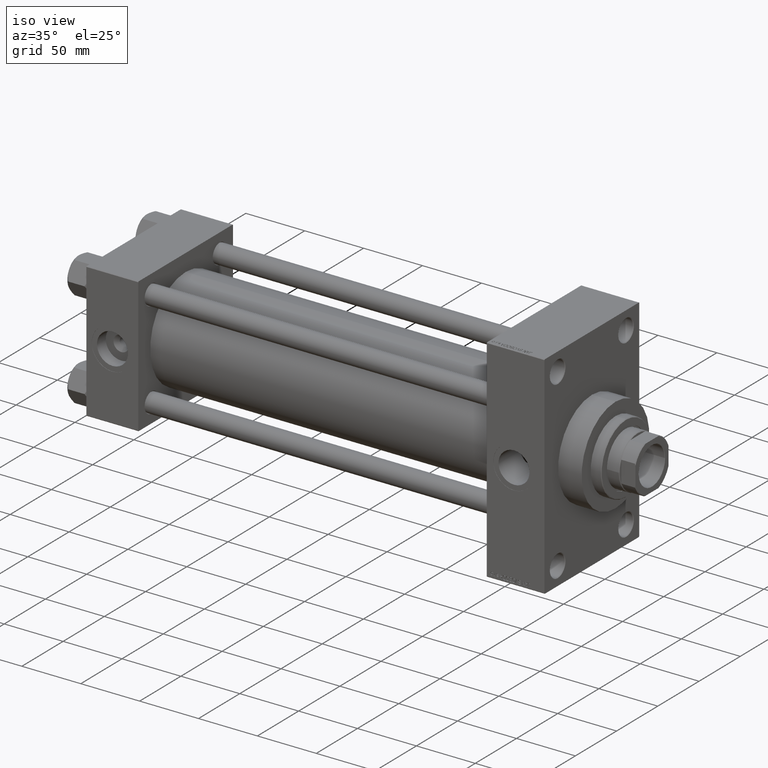
[diagram: clean part render]
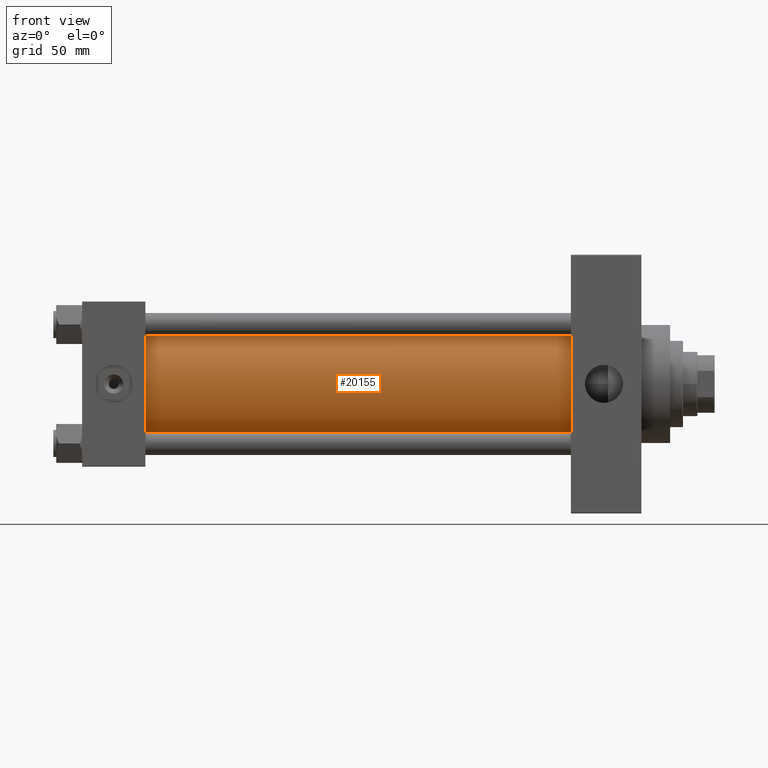
[diagram: tour spotlight — one face highlighted and labeled with its STEP entity id]
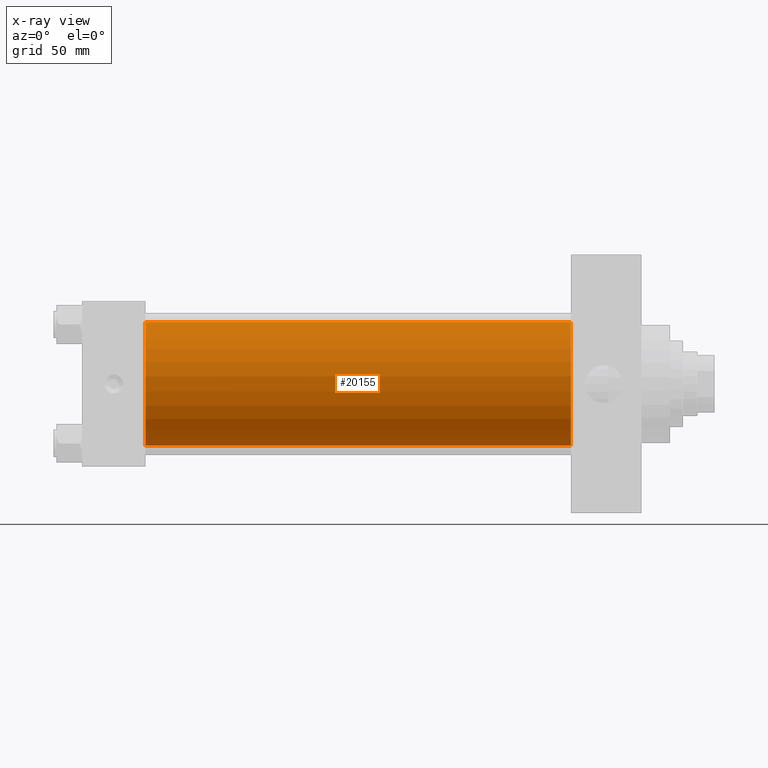
[diagram: x-ray of the same camera — body ghosted, this tour face saturated]
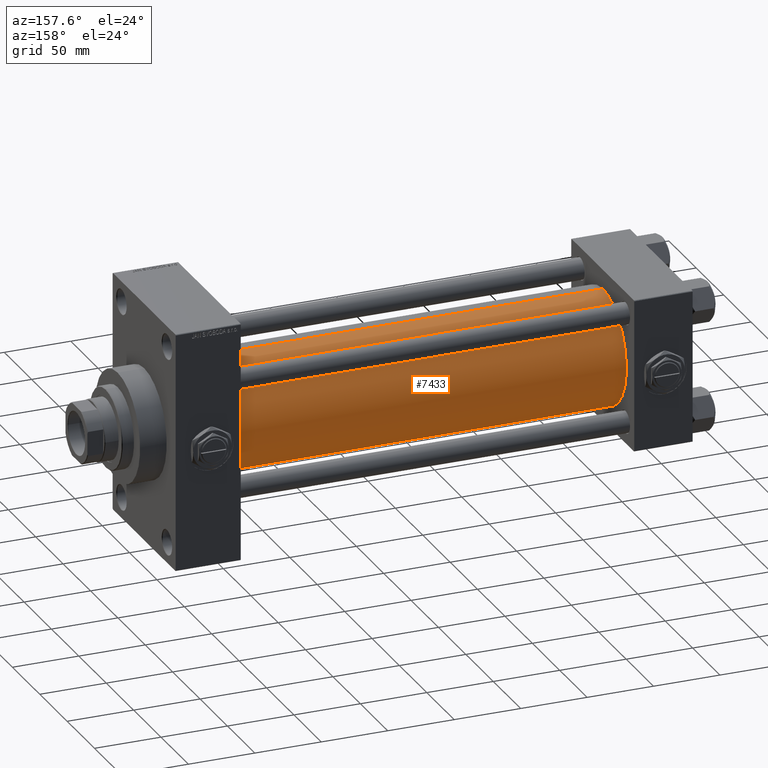
[diagram: tour spotlight — one face highlighted and labeled with its STEP entity id]
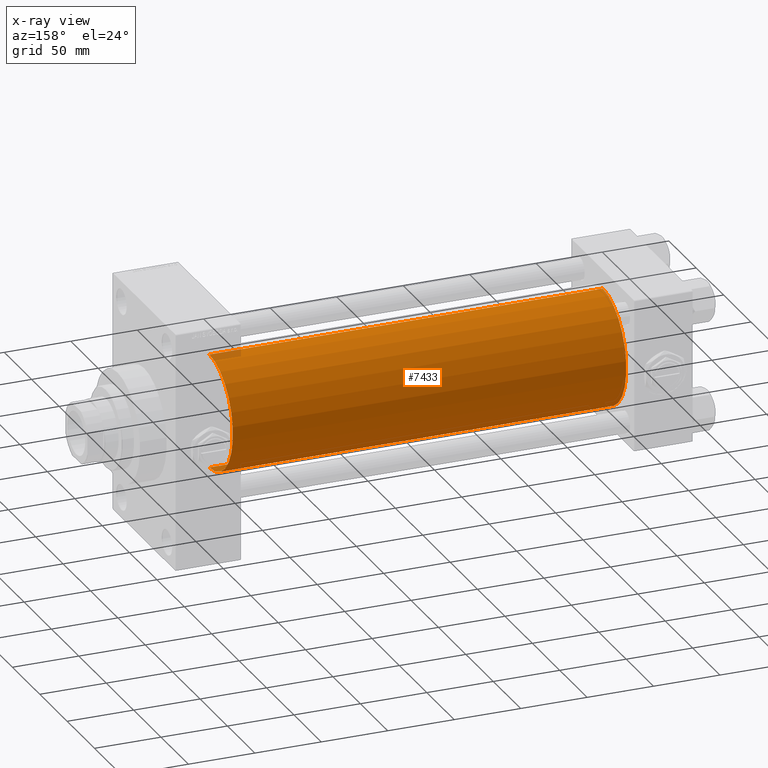
[diagram: x-ray of the same camera — body ghosted, this tour face saturated]
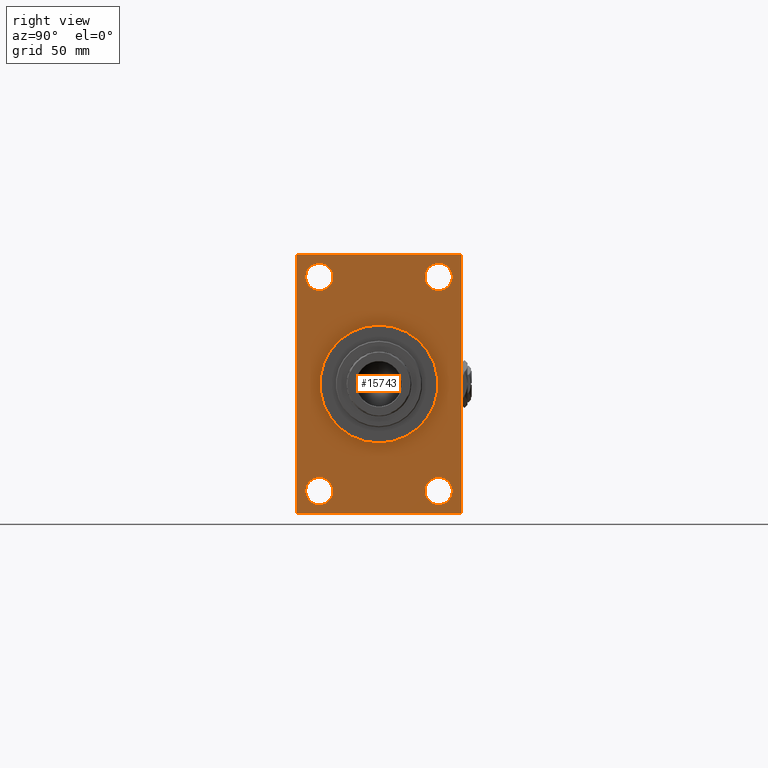
[diagram: tour spotlight — one face highlighted and labeled with its STEP entity id]
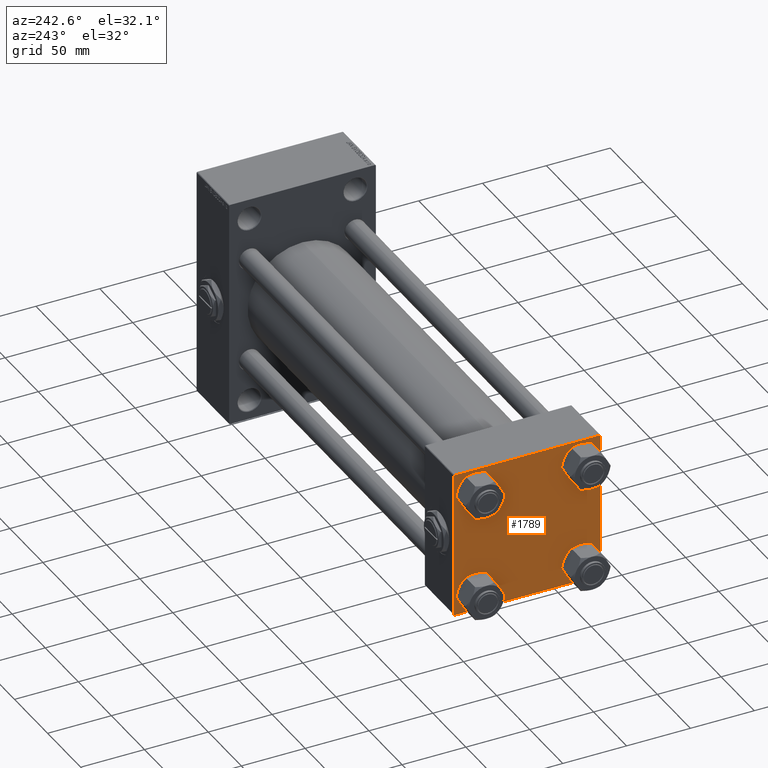
[diagram: tour spotlight — one face highlighted and labeled with its STEP entity id]
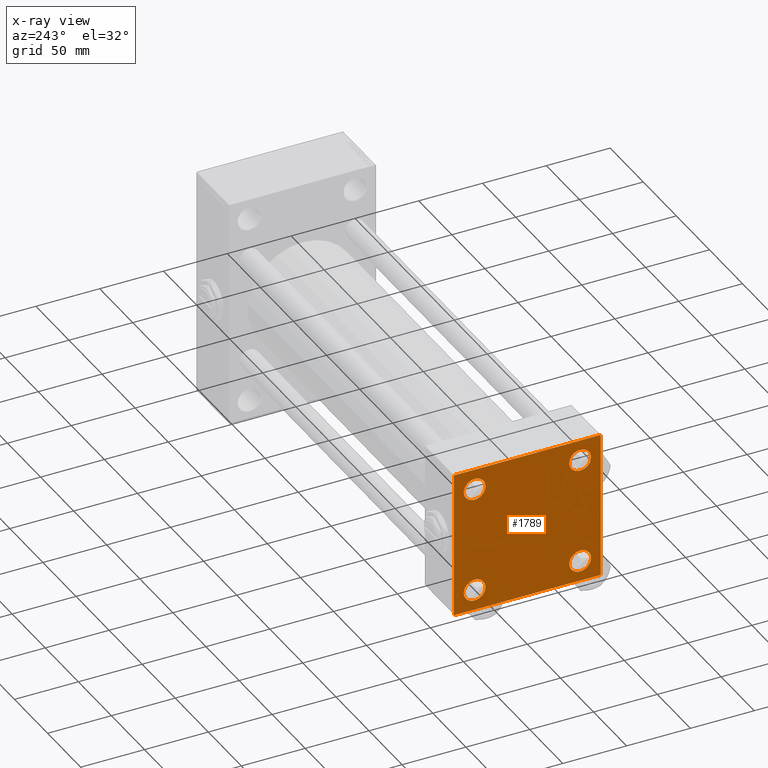
[diagram: x-ray of the same camera — body ghosted, this tour face saturated]
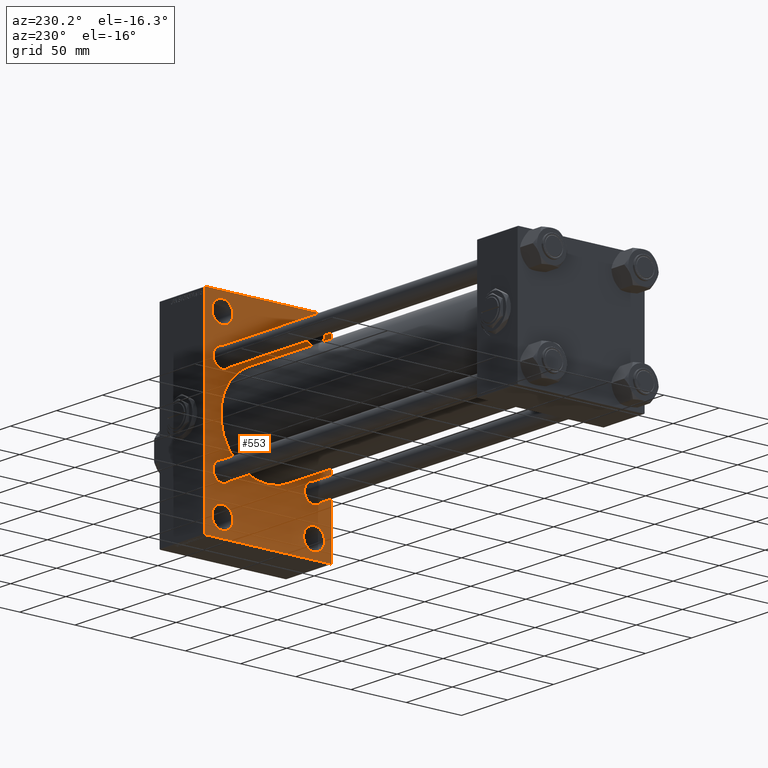
[diagram: tour spotlight — one face highlighted and labeled with its STEP entity id]
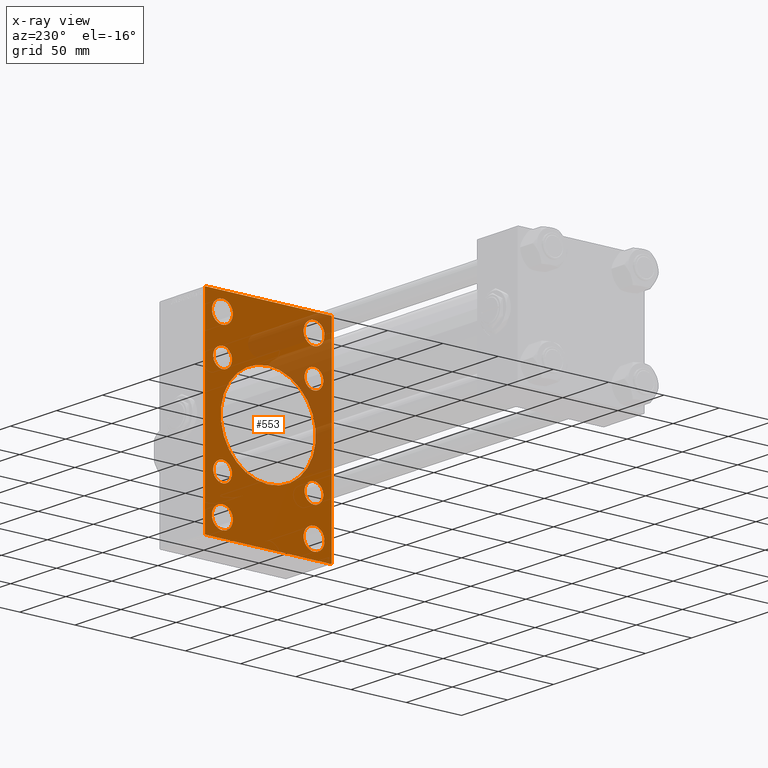
[diagram: x-ray of the same camera — body ghosted, this tour face saturated]
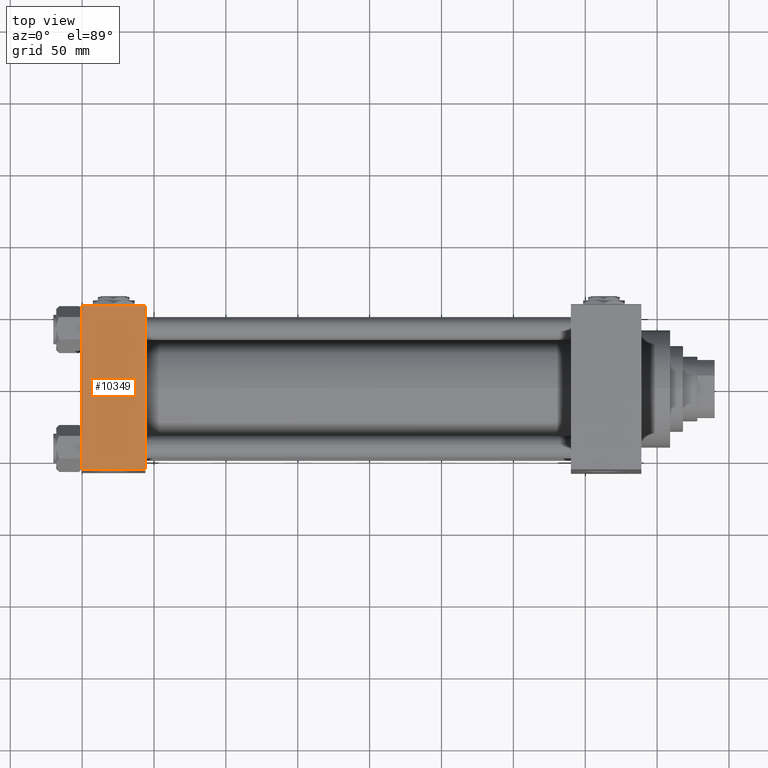
[diagram: tour spotlight — one face highlighted and labeled with its STEP entity id]
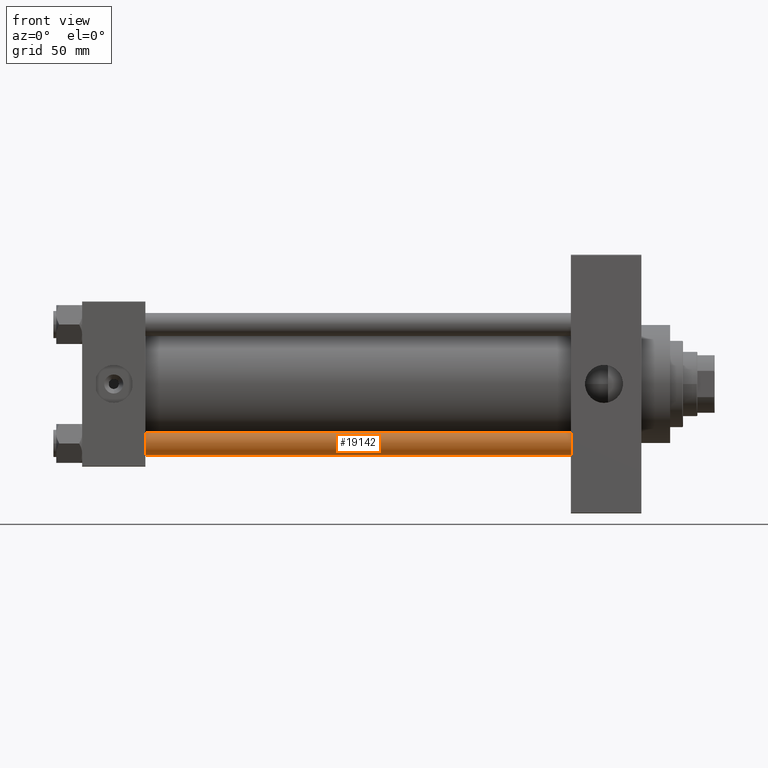
[diagram: tour spotlight — one face highlighted and labeled with its STEP entity id]
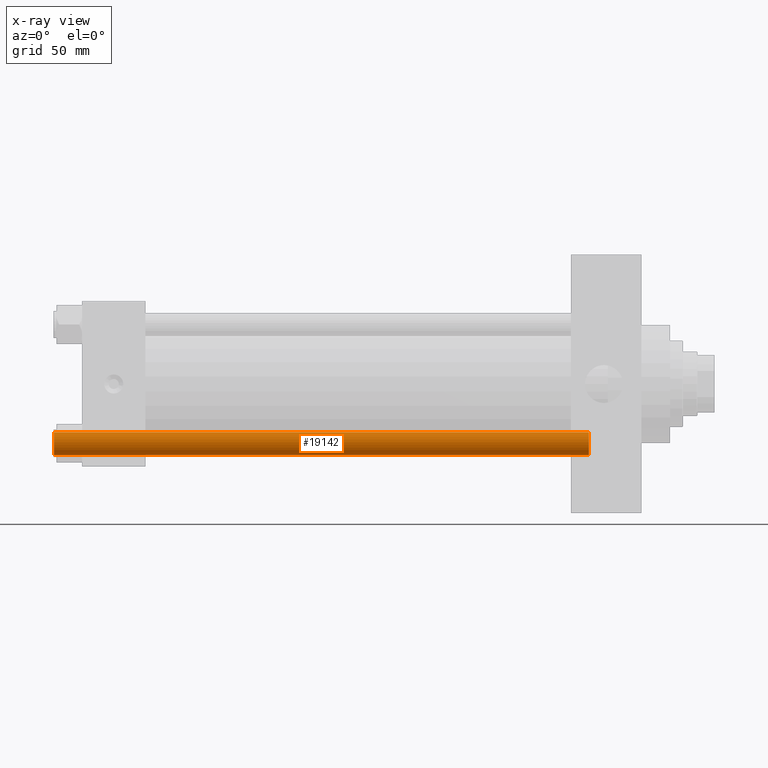
[diagram: x-ray of the same camera — body ghosted, this tour face saturated]
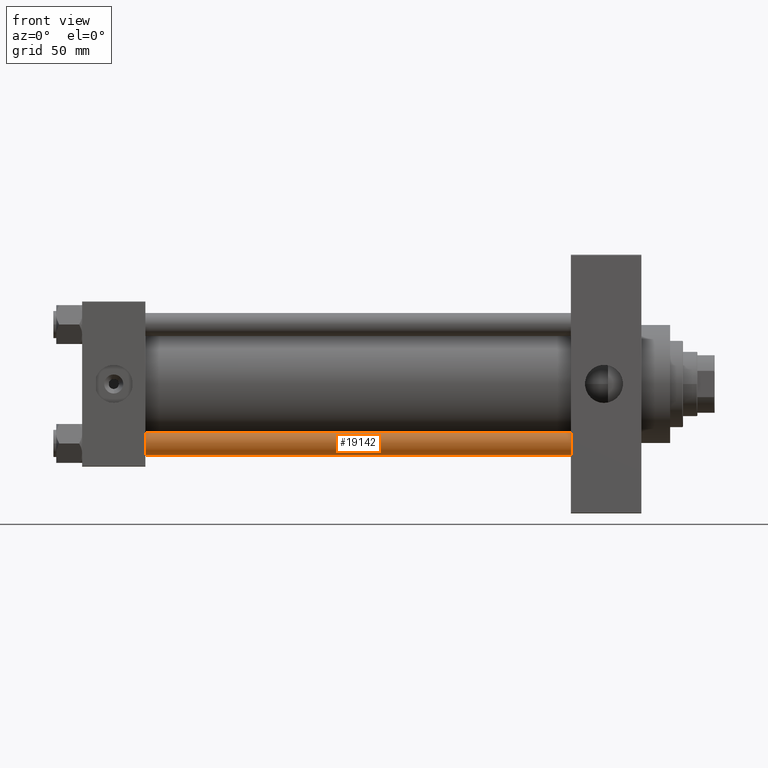
[diagram: tour spotlight — one face highlighted and labeled with its STEP entity id]
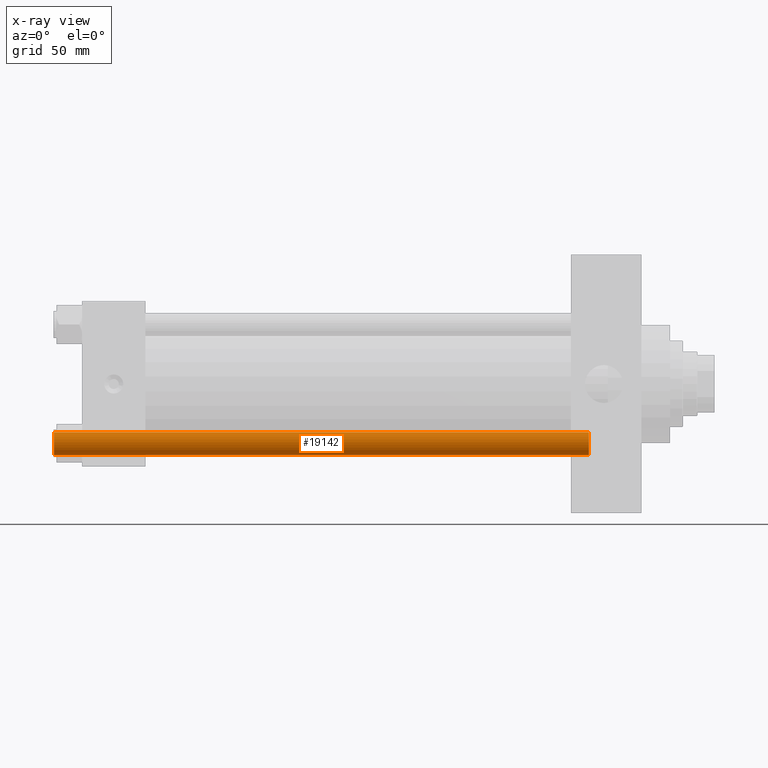
[diagram: x-ray of the same camera — body ghosted, this tour face saturated]
A machine part: a face-by-face anatomy tour. The part has 1253 B-rep faces; the first image is the clean iso view, then the 8 largest visible faces are spotlighted one at a time (largest first), each with its STEP entity span.

Face 1 — front view, entity #20155. An x-ray twin of the same camera follows (body ghosted, this face saturated) — the face is partly hidden behind the body. In plain terms, the highlighted cylindrical surface (partial cylindrical patch) has radius 43 mm, axis along (-1, -0, -0).
Definition (entity closure, byte-faithful):
#3869 = VERTEX_POINT ( 'NONE', #48810 ) ;
#4344 = EDGE_CURVE ( 'NONE', #3869, #11745, #36093, .T. ) ;
#4516 = CIRCLE ( 'NONE', #18997, 43.00000000000000000 ) ;
#5059 = DIRECTION ( 'NONE',  ( -1.000000000000000000, -0.000000000000000000, -0.000000000000000000 ) ) ;
#5953 = DIRECTION ( 'NONE',  ( -1.000000000000000000, -0.000000000000000000, -0.000000000000000000 ) ) ;
#6028 = CARTESIAN_POINT ( 'NONE',  ( 339.9999999999999432, -2.602085213965210642E-15, 0.000000000000000000 ) ) ;
#6233 = DIRECTION ( 'NONE',  ( -1.000000000000000000, -0.000000000000000000, -0.000000000000000000 ) ) ;
#6380 = ORIENTED_EDGE ( 'NONE', *, *, #26390, .T. ) ;
#6762 = VECTOR ( 'NONE', #5953, 1000.000000000000000 ) ;
#9913 = CARTESIAN_POINT ( 'NONE',  ( 43.99999999999998579, -2.602085213965210642E-15, 43.00000000000000000 ) ) ;
#11745 = VERTEX_POINT ( 'NONE', #31024 ) ;
#13422 = CARTESIAN_POINT ( 'NONE',  ( 339.9999999999999432, -2.602085213965210642E-15, 0.000000000000000000 ) ) ;
#15981 = CARTESIAN_POINT ( 'NONE',  ( 43.99999999999998579, -2.602085213965210642E-15, 0.000000000000000000 ) ) ;
#17408 = ORIENTED_EDGE ( 'NONE', *, *, #4344, .F. ) ;
#18598 = EDGE_CURVE ( 'NONE', #11745, #41298, #24854, .T. ) ;
#18997 = AXIS2_PLACEMENT_3D ( 'NONE', #15981, #35609, #39135 ) ;
#20155 = ADVANCED_FACE ( 'NONE', ( #36281 ), #28471, .T. ) ;
#20872 = CARTESIAN_POINT ( 'NONE',  ( 339.9999999999999432, -2.602085213965210642E-15, 43.00000000000000000 ) ) ;
#24821 = AXIS2_PLACEMENT_3D ( 'NONE', #13422, #28781, #44128 ) ;
#24854 = LINE ( 'NONE', #36205, #6762 ) ;
#26390 = EDGE_CURVE ( 'NONE', #47821, #41298, #4516, .T. ) ;
#26393 = VECTOR ( 'NONE', #6233, 1000.000000000000000 ) ;
#28471 = CYLINDRICAL_SURFACE ( 'NONE', #40474, 43.00000000000000000 ) ;
#28781 = DIRECTION ( 'NONE',  ( 1.000000000000000000, 0.000000000000000000, 0.000000000000000000 ) ) ;
#31024 = CARTESIAN_POINT ( 'NONE',  ( 339.9999999999999432, 2.663896022368408223E-15, -43.00000000000000000 ) ) ;
#31588 = EDGE_CURVE ( 'NONE', #3869, #47821, #44745, .T. ) ;
#35609 = DIRECTION ( 'NONE',  ( 1.000000000000000000, -0.000000000000000000, 0.000000000000000000 ) ) ;
#36093 = CIRCLE ( 'NONE', #24821, 43.00000000000000000 ) ;
#36205 = CARTESIAN_POINT ( 'NONE',  ( 339.9999999999999432, 2.663896022368408223E-15, -43.00000000000000000 ) ) ;
#36281 = FACE_OUTER_BOUND ( 'NONE', #44522, .T. ) ;
#37566 = CARTESIAN_POINT ( 'NONE',  ( 43.99999999999998579, 2.663896022368408223E-15, -43.00000000000000000 ) ) ;
#38863 = ORIENTED_EDGE ( 'NONE', *, *, #18598, .F. ) ;
#39135 = DIRECTION ( 'NONE',  ( 0.000000000000000000, 0.000000000000000000, 1.000000000000000000 ) ) ;
#40044 = DIRECTION ( 'NONE',  ( 0.000000000000000000, 0.000000000000000000, 1.000000000000000000 ) ) ;
#40474 = AXIS2_PLACEMENT_3D ( 'NONE', #6028, #5059, #40044 ) ;
#41298 = VERTEX_POINT ( 'NONE', #37566 ) ;
#42644 = ORIENTED_EDGE ( 'NONE', *, *, #31588, .T. ) ;
#44128 = DIRECTION ( 'NONE',  ( 0.000000000000000000, 0.000000000000000000, -1.000000000000000000 ) ) ;
#44522 = EDGE_LOOP ( 'NONE', ( #38863, #17408, #42644, #6380 ) ) ;
#44745 = LINE ( 'NONE', #20872, #26393 ) ;
#47821 = VERTEX_POINT ( 'NONE', #9913 ) ;
#48810 = CARTESIAN_POINT ( 'NONE',  ( 339.9999999999999432, -2.602085213965210642E-15, 43.00000000000000000 ) ) ;

Face 2 — auxiliary view, entity #7433. An x-ray twin of the same camera follows (body ghosted, this face saturated) — the face is partly hidden behind the body. In plain terms, the highlighted cylindrical surface (partial cylindrical patch) has radius 43 mm, axis along (-1, -0, -0).
Definition (entity closure, byte-faithful):
#2103 = AXIS2_PLACEMENT_3D ( 'NONE', #46889, #23988, #35340 ) ;
#3869 = VERTEX_POINT ( 'NONE', #48810 ) ;
#5623 = FACE_OUTER_BOUND ( 'NONE', #31258, .T. ) ;
#5953 = DIRECTION ( 'NONE',  ( -1.000000000000000000, -0.000000000000000000, -0.000000000000000000 ) ) ;
#6233 = DIRECTION ( 'NONE',  ( -1.000000000000000000, -0.000000000000000000, -0.000000000000000000 ) ) ;
#6762 = VECTOR ( 'NONE', #5953, 1000.000000000000000 ) ;
#7433 = ADVANCED_FACE ( 'NONE', ( #5623 ), #8418, .T. ) ;
#8418 = CYLINDRICAL_SURFACE ( 'NONE', #29748, 43.00000000000000000 ) ;
#9913 = CARTESIAN_POINT ( 'NONE',  ( 43.99999999999998579, -2.602085213965210642E-15, 43.00000000000000000 ) ) ;
#11745 = VERTEX_POINT ( 'NONE', #31024 ) ;
#13035 = DIRECTION ( 'NONE',  ( 0.000000000000000000, 0.000000000000000000, -1.000000000000000000 ) ) ;
#13428 = CARTESIAN_POINT ( 'NONE',  ( 339.9999999999999432, -2.602085213965210642E-15, 0.000000000000000000 ) ) ;
#16962 = DIRECTION ( 'NONE',  ( 0.000000000000000000, 0.000000000000000000, 1.000000000000000000 ) ) ;
#18598 = EDGE_CURVE ( 'NONE', #11745, #41298, #24854, .T. ) ;
#19860 = ORIENTED_EDGE ( 'NONE', *, *, #18598, .T. ) ;
#20872 = CARTESIAN_POINT ( 'NONE',  ( 339.9999999999999432, -2.602085213965210642E-15, 43.00000000000000000 ) ) ;
#22603 = ORIENTED_EDGE ( 'NONE', *, *, #47155, .T. ) ;
#23800 = EDGE_CURVE ( 'NONE', #11745, #3869, #26947, .T. ) ;
#23823 = CIRCLE ( 'NONE', #2103, 43.00000000000000000 ) ;
#23988 = DIRECTION ( 'NONE',  ( 1.000000000000000000, -0.000000000000000000, 0.000000000000000000 ) ) ;
#24854 = LINE ( 'NONE', #36205, #6762 ) ;
#26393 = VECTOR ( 'NONE', #6233, 1000.000000000000000 ) ;
#26947 = CIRCLE ( 'NONE', #28530, 43.00000000000000000 ) ;
#28530 = AXIS2_PLACEMENT_3D ( 'NONE', #46780, #43000, #13035 ) ;
#29748 = AXIS2_PLACEMENT_3D ( 'NONE', #13428, #36347, #16962 ) ;
#31024 = CARTESIAN_POINT ( 'NONE',  ( 339.9999999999999432, 2.663896022368408223E-15, -43.00000000000000000 ) ) ;
#31258 = EDGE_LOOP ( 'NONE', ( #35415, #19860, #22603, #43971 ) ) ;
#31588 = EDGE_CURVE ( 'NONE', #3869, #47821, #44745, .T. ) ;
#35340 = DIRECTION ( 'NONE',  ( 0.000000000000000000, 0.000000000000000000, 1.000000000000000000 ) ) ;
#35415 = ORIENTED_EDGE ( 'NONE', *, *, #23800, .F. ) ;
#36205 = CARTESIAN_POINT ( 'NONE',  ( 339.9999999999999432, 2.663896022368408223E-15, -43.00000000000000000 ) ) ;
#36347 = DIRECTION ( 'NONE',  ( -1.000000000000000000, -0.000000000000000000, -0.000000000000000000 ) ) ;
#37566 = CARTESIAN_POINT ( 'NONE',  ( 43.99999999999998579, 2.663896022368408223E-15, -43.00000000000000000 ) ) ;
#41298 = VERTEX_POINT ( 'NONE', #37566 ) ;
#43000 = DIRECTION ( 'NONE',  ( 1.000000000000000000, 0.000000000000000000, 0.000000000000000000 ) ) ;
#43971 = ORIENTED_EDGE ( 'NONE', *, *, #31588, .F. ) ;
#44745 = LINE ( 'NONE', #20872, #26393 ) ;
#46780 = CARTESIAN_POINT ( 'NONE',  ( 339.9999999999999432, -2.602085213965210642E-15, 0.000000000000000000 ) ) ;
#46889 = CARTESIAN_POINT ( 'NONE',  ( 43.99999999999998579, -2.602085213965210642E-15, 0.000000000000000000 ) ) ;
#47155 = EDGE_CURVE ( 'NONE', #41298, #47821, #23823, .T. ) ;
#47821 = VERTEX_POINT ( 'NONE', #9913 ) ;
#48810 = CARTESIAN_POINT ( 'NONE',  ( 339.9999999999999432, -2.602085213965210642E-15, 43.00000000000000000 ) ) ;

Face 3 — right view, entity #15743. In plain terms, the highlighted planar face has unit normal (-1, 0, 0).
Definition (entity closure, byte-faithful):
#125 = DIRECTION ( 'NONE',  ( 0.000000000000000000, -1.000000000000000000, -1.206764157201257291E-16 ) ) ;
#191 = FACE_BOUND ( 'NONE', #35501, .T. ) ;
#221 = AXIS2_PLACEMENT_3D ( 'NONE', #19320, #8238, #38953 ) ;
#338 = ORIENTED_EDGE ( 'NONE', *, *, #4245, .T. ) ;
#439 = FACE_BOUND ( 'NONE', #15445, .T. ) ;
#763 = AXIS2_PLACEMENT_3D ( 'NONE', #5744, #25359, #33164 ) ;
#1032 = DIRECTION ( 'NONE',  ( 0.000000000000000000, 0.000000000000000000, 1.000000000000000000 ) ) ;
#1062 = DIRECTION ( 'NONE',  ( 0.000000000000000000, -1.000000000000000000, -1.206764157201257045E-16 ) ) ;
#1088 = ORIENTED_EDGE ( 'NONE', *, *, #8365, .T. ) ;
#1230 = DIRECTION ( 'NONE',  ( -1.000000000000000000, 0.000000000000000000, -0.000000000000000000 ) ) ;
#1524 = CARTESIAN_POINT ( 'NONE',  ( 388.9999999999999432, -41.49999999999999289, -74.49999999999998579 ) ) ;
#1763 = EDGE_CURVE ( 'NONE', #15260, #6124, #24897, .T. ) ;
#2205 = CARTESIAN_POINT ( 'NONE',  ( 388.9999999999999432, -41.49999999999999289, 65.00000000000000000 ) ) ;
#2309 = CARTESIAN_POINT ( 'NONE',  ( 388.9999999999999432, -41.49999999999999289, -64.99999999999997158 ) ) ;
#2852 = VERTEX_POINT ( 'NONE', #40931 ) ;
#3014 = CARTESIAN_POINT ( 'NONE',  ( 388.9999999999999432, 57.49999999999997158, 89.99999999999998579 ) ) ;
#3103 = ORIENTED_EDGE ( 'NONE', *, *, #37397, .T. ) ;
#3549 = VERTEX_POINT ( 'NONE', #41831 ) ;
#3620 = VERTEX_POINT ( 'NONE', #39058 ) ;
#4041 = DIRECTION ( 'NONE',  ( 0.000000000000000000, 3.854941057726238467E-17, -1.000000000000000000 ) ) ;
#4245 = EDGE_CURVE ( 'NONE', #22183, #30111, #20244, .T. ) ;
#4784 = CIRCLE ( 'NONE', #763, 9.500000000000008882 ) ;
#4788 = AXIS2_PLACEMENT_3D ( 'NONE', #35729, #1230, #9032 ) ;
#5348 = AXIS2_PLACEMENT_3D ( 'NONE', #38738, #26395, #7002 ) ;
#5744 = CARTESIAN_POINT ( 'NONE',  ( 388.9999999999999432, 41.50000000000000711, -74.50000000000000000 ) ) ;
#5762 = DIRECTION ( 'NONE',  ( 0.000000000000000000, 0.000000000000000000, -1.000000000000000000 ) ) ;
#5826 = EDGE_CURVE ( 'NONE', #44352, #38497, #16080, .T. ) ;
#6066 = EDGE_LOOP ( 'NONE', ( #39292, #35353 ) ) ;
#6124 = VERTEX_POINT ( 'NONE', #37380 ) ;
#6409 = CARTESIAN_POINT ( 'NONE',  ( 388.9999999999999432, 56.99999999999997158, 89.99999999999998579 ) ) ;
#6507 = EDGE_LOOP ( 'NONE', ( #6871, #3103 ) ) ;
#6746 = LINE ( 'NONE', #29921, #37347 ) ;
#6871 = ORIENTED_EDGE ( 'NONE', *, *, #42557, .T. ) ;
#6904 = AXIS2_PLACEMENT_3D ( 'NONE', #38322, #10623, #11636 ) ;
#7002 = DIRECTION ( 'NONE',  ( 0.000000000000000000, 0.000000000000000000, 1.000000000000000000 ) ) ;
#7297 = EDGE_CURVE ( 'NONE', #8147, #22183, #10939, .T. ) ;
#7487 = DIRECTION ( 'NONE',  ( -1.000000000000000000, 0.000000000000000000, -0.000000000000000000 ) ) ;
#7859 = CARTESIAN_POINT ( 'NONE',  ( 388.9999999999999432, -57.50000000000002132, 89.50000000000002842 ) ) ;
#8147 = VERTEX_POINT ( 'NONE', #31950 ) ;
#8238 = DIRECTION ( 'NONE',  ( -1.000000000000000000, 0.000000000000000000, -0.000000000000000000 ) ) ;
#8334 = EDGE_CURVE ( 'NONE', #45914, #15412, #4784, .T. ) ;
#8365 = EDGE_CURVE ( 'NONE', #2852, #48113, #44152, .T. ) ;
#9032 = DIRECTION ( 'NONE',  ( 0.000000000000000000, 0.000000000000000000, 1.000000000000000000 ) ) ;
#9217 = CARTESIAN_POINT ( 'NONE',  ( 388.9999999999999432, 41.50000000000000711, -64.99999999999998579 ) ) ;
#10348 = VERTEX_POINT ( 'NONE', #41636 ) ;
#10623 = DIRECTION ( 'NONE',  ( 1.000000000000000000, 0.000000000000000000, 0.000000000000000000 ) ) ;
#10939 = LINE ( 'NONE', #6409, #40979 ) ;
#11527 = CIRCLE ( 'NONE', #24381, 41.00000000000000000 ) ;
#11587 = LINE ( 'NONE', #3014, #33401 ) ;
#11636 = DIRECTION ( 'NONE',  ( 0.000000000000000000, 0.000000000000000000, -1.000000000000000000 ) ) ;
#12026 = FACE_BOUND ( 'NONE', #6507, .T. ) ;
#12273 = FACE_OUTER_BOUND ( 'NONE', #27099, .T. ) ;
#12834 = CARTESIAN_POINT ( 'NONE',  ( 388.9999999999999432, -57.00000000000007105, 89.99999999999997158 ) ) ;
#13314 = DIRECTION ( 'NONE',  ( 0.000000000000000000, 0.000000000000000000, 1.000000000000000000 ) ) ;
#13438 = EDGE_CURVE ( 'NONE', #48075, #10348, #11527, .T. ) ;
#13594 = ORIENTED_EDGE ( 'NONE', *, *, #48756, .T. ) ;
#13659 = DIRECTION ( 'NONE',  ( 0.000000000000000000, 0.000000000000000000, 1.000000000000000000 ) ) ;
#13880 = LINE ( 'NONE', #14127, #33293 ) ;
#14127 = CARTESIAN_POINT ( 'NONE',  ( 388.9999999999999432, -57.00000000000002132, -90.00000000000001421 ) ) ;
#14281 = VECTOR ( 'NONE', #1062, 1000.000000000000000 ) ;
#15260 = VERTEX_POINT ( 'NONE', #7859 ) ;
#15412 = VERTEX_POINT ( 'NONE', #37251 ) ;
#15445 = EDGE_LOOP ( 'NONE', ( #15521, #18458 ) ) ;
#15521 = ORIENTED_EDGE ( 'NONE', *, *, #34362, .T. ) ;
#15717 = CIRCLE ( 'NONE', #43823, 9.500000000000008882 ) ;
#15743 = ADVANCED_FACE ( 'NONE', ( #439, #191, #23590, #12026, #19820, #12273 ), #27387, .F. ) ;
#15795 = CARTESIAN_POINT ( 'NONE',  ( 388.9999999999999432, 56.99999999999997158, 89.99999999999998579 ) ) ;
#16080 = CIRCLE ( 'NONE', #4788, 9.500000000000008882 ) ;
#16846 = AXIS2_PLACEMENT_3D ( 'NONE', #37705, #7487, #38206 ) ;
#16917 = CARTESIAN_POINT ( 'NONE',  ( 388.9999999999999432, -41.49999999999999289, 84.00000000000001421 ) ) ;
#17405 = DIRECTION ( 'NONE',  ( -0.000000000000000000, -0.7071067811865524577, -0.7071067811865426878 ) ) ;
#17420 = CARTESIAN_POINT ( 'NONE',  ( 388.9999999999999432, -41.49999999999999289, 74.50000000000001421 ) ) ;
#17526 = CARTESIAN_POINT ( 'NONE',  ( 388.9999999999999432, 41.50000000000000711, 65.00000000000000000 ) ) ;
#17863 = EDGE_CURVE ( 'NONE', #6124, #45951, #13880, .T. ) ;
#18303 = VECTOR ( 'NONE', #5762, 1000.000000000000000 ) ;
#18458 = ORIENTED_EDGE ( 'NONE', *, *, #5826, .T. ) ;
#18915 = ORIENTED_EDGE ( 'NONE', *, *, #29752, .F. ) ;
#19320 = CARTESIAN_POINT ( 'NONE',  ( 388.9999999999999432, 0.000000000000000000, 0.000000000000000000 ) ) ;
#19820 = FACE_BOUND ( 'NONE', #44562, .T. ) ;
#19953 = LINE ( 'NONE', #31040, #14281 ) ;
#20244 = LINE ( 'NONE', #23280, #41673 ) ;
#21917 = DIRECTION ( 'NONE',  ( 0.000000000000000000, 0.7071067811865965336, -0.7071067811864985009 ) ) ;
#21922 = ORIENTED_EDGE ( 'NONE', *, *, #17863, .T. ) ;
#22057 = DIRECTION ( 'NONE',  ( 1.000000000000000000, 0.000000000000000000, 0.000000000000000000 ) ) ;
#22183 = VERTEX_POINT ( 'NONE', #15795 ) ;
#22223 = CIRCLE ( 'NONE', #5348, 9.500000000000008882 ) ;
#23280 = CARTESIAN_POINT ( 'NONE',  ( 388.9999999999999432, 57.49999999999997158, 89.99999999999998579 ) ) ;
#23590 = FACE_BOUND ( 'NONE', #6066, .T. ) ;
#23619 = EDGE_CURVE ( 'NONE', #38995, #3620, #6746, .T. ) ;
#23817 = CIRCLE ( 'NONE', #6904, 41.00000000000000000 ) ;
#24381 = AXIS2_PLACEMENT_3D ( 'NONE', #45470, #22057, #24923 ) ;
#24572 = CARTESIAN_POINT ( 'NONE',  ( 388.9999999999999432, -57.00000000000002132, -90.00000000000001421 ) ) ;
#24897 = LINE ( 'NONE', #44272, #18303 ) ;
#24923 = DIRECTION ( 'NONE',  ( 0.000000000000000000, 0.000000000000000000, -1.000000000000000000 ) ) ;
#25150 = ORIENTED_EDGE ( 'NONE', *, *, #7297, .T. ) ;
#25214 = ORIENTED_EDGE ( 'NONE', *, *, #45355, .T. ) ;
#25328 = DIRECTION ( 'NONE',  ( 0.000000000000000000, 0.000000000000000000, 1.000000000000000000 ) ) ;
#25359 = DIRECTION ( 'NONE',  ( -1.000000000000000000, 0.000000000000000000, -0.000000000000000000 ) ) ;
#25367 = DIRECTION ( 'NONE',  ( -1.000000000000000000, 0.000000000000000000, -0.000000000000000000 ) ) ;
#25824 = DIRECTION ( 'NONE',  ( -1.000000000000000000, 0.000000000000000000, -0.000000000000000000 ) ) ;
#26148 = ORIENTED_EDGE ( 'NONE', *, *, #23619, .T. ) ;
#26194 = LINE ( 'NONE', #33500, #45441 ) ;
#26395 = DIRECTION ( 'NONE',  ( -1.000000000000000000, 0.000000000000000000, -0.000000000000000000 ) ) ;
#26493 = EDGE_CURVE ( 'NONE', #10348, #48075, #23817, .T. ) ;
#27099 = EDGE_LOOP ( 'NONE', ( #37223, #21922, #18915, #26148, #41828, #25150, #338, #25214 ) ) ;
#27387 = PLANE ( 'NONE',  #221 ) ;
#27895 = AXIS2_PLACEMENT_3D ( 'NONE', #1524, #28216, #1032 ) ;
#28066 = CARTESIAN_POINT ( 'NONE',  ( 388.9999999999999432, 56.99999999999997868, -90.00000000000000000 ) ) ;
#28216 = DIRECTION ( 'NONE',  ( -1.000000000000000000, 0.000000000000000000, -0.000000000000000000 ) ) ;
#29752 = EDGE_CURVE ( 'NONE', #38995, #45951, #19953, .T. ) ;
#29921 = CARTESIAN_POINT ( 'NONE',  ( 388.9999999999999432, 57.49999999999997868, -89.50000000000001421 ) ) ;
#30111 = VERTEX_POINT ( 'NONE', #12834 ) ;
#30371 = CARTESIAN_POINT ( 'NONE',  ( 388.9999999999999432, 41.50000000000000711, 74.50000000000001421 ) ) ;
#30546 = CIRCLE ( 'NONE', #40189, 9.500000000000008882 ) ;
#31040 = CARTESIAN_POINT ( 'NONE',  ( 388.9999999999999432, 57.49999999999997868, -90.00000000000000000 ) ) ;
#31194 = CIRCLE ( 'NONE', #49719, 9.500000000000008882 ) ;
#31331 = VERTEX_POINT ( 'NONE', #17526 ) ;
#31950 = CARTESIAN_POINT ( 'NONE',  ( 388.9999999999999432, 57.49999999999997158, 89.49999999999998579 ) ) ;
#32302 = DIRECTION ( 'NONE',  ( -1.000000000000000000, 0.000000000000000000, -0.000000000000000000 ) ) ;
#33164 = DIRECTION ( 'NONE',  ( 0.000000000000000000, 0.000000000000000000, 1.000000000000000000 ) ) ;
#33293 = VECTOR ( 'NONE', #21917, 1000.000000000000114 ) ;
#33401 = VECTOR ( 'NONE', #4041, 1000.000000000000000 ) ;
#33500 = CARTESIAN_POINT ( 'NONE',  ( 388.9999999999999432, -57.50000000000002132, 89.50000000000002842 ) ) ;
#34362 = EDGE_CURVE ( 'NONE', #38497, #44352, #31194, .T. ) ;
#35353 = ORIENTED_EDGE ( 'NONE', *, *, #8334, .T. ) ;
#35501 = EDGE_LOOP ( 'NONE', ( #1088, #13594 ) ) ;
#35729 = CARTESIAN_POINT ( 'NONE',  ( 388.9999999999999432, -41.49999999999999289, 74.50000000000001421 ) ) ;
#37126 = DIRECTION ( 'NONE',  ( 0.000000000000000000, -0.7071067811865474617, 0.7071067811865474617 ) ) ;
#37223 = ORIENTED_EDGE ( 'NONE', *, *, #1763, .T. ) ;
#37251 = CARTESIAN_POINT ( 'NONE',  ( 388.9999999999999432, 41.50000000000000711, -84.00000000000000000 ) ) ;
#37347 = VECTOR ( 'NONE', #45262, 1000.000000000000000 ) ;
#37380 = CARTESIAN_POINT ( 'NONE',  ( 388.9999999999999432, -57.50000000000002132, -89.50000000000002842 ) ) ;
#37397 = EDGE_CURVE ( 'NONE', #3549, #31331, #30546, .T. ) ;
#37705 = CARTESIAN_POINT ( 'NONE',  ( 388.9999999999999432, -41.49999999999999289, -74.49999999999998579 ) ) ;
#38206 = DIRECTION ( 'NONE',  ( 0.000000000000000000, 0.000000000000000000, 1.000000000000000000 ) ) ;
#38322 = CARTESIAN_POINT ( 'NONE',  ( 388.9999999999999432, 0.000000000000000000, 0.000000000000000000 ) ) ;
#38497 = VERTEX_POINT ( 'NONE', #2205 ) ;
#38738 = CARTESIAN_POINT ( 'NONE',  ( 388.9999999999999432, 41.50000000000000711, -74.50000000000000000 ) ) ;
#38953 = DIRECTION ( 'NONE',  ( -0.000000000000000000, 0.000000000000000000, 1.000000000000000000 ) ) ;
#38995 = VERTEX_POINT ( 'NONE', #28066 ) ;
#39058 = CARTESIAN_POINT ( 'NONE',  ( 388.9999999999999432, 57.49999999999997868, -89.49999999999995737 ) ) ;
#39292 = ORIENTED_EDGE ( 'NONE', *, *, #45715, .T. ) ;
#40189 = AXIS2_PLACEMENT_3D ( 'NONE', #30371, #25824, #25328 ) ;
#40931 = CARTESIAN_POINT ( 'NONE',  ( 388.9999999999999432, -41.49999999999999289, -83.99999999999998579 ) ) ;
#40979 = VECTOR ( 'NONE', #37126, 1000.000000000000114 ) ;
#41636 = CARTESIAN_POINT ( 'NONE',  ( 388.9999999999999432, 0.000000000000000000, 41.00000000000000000 ) ) ;
#41673 = VECTOR ( 'NONE', #125, 1000.000000000000000 ) ;
#41828 = ORIENTED_EDGE ( 'NONE', *, *, #43692, .F. ) ;
#41831 = CARTESIAN_POINT ( 'NONE',  ( 388.9999999999999432, 41.50000000000000711, 84.00000000000001421 ) ) ;
#42557 = EDGE_CURVE ( 'NONE', #31331, #3549, #15717, .T. ) ;
#43692 = EDGE_CURVE ( 'NONE', #8147, #3620, #11587, .T. ) ;
#43823 = AXIS2_PLACEMENT_3D ( 'NONE', #48041, #25367, #13314 ) ;
#43930 = CIRCLE ( 'NONE', #27895, 9.500000000000008882 ) ;
#44106 = CARTESIAN_POINT ( 'NONE',  ( 388.9999999999999432, 5.021051876504148963E-15, -41.00000000000000000 ) ) ;
#44152 = CIRCLE ( 'NONE', #16846, 9.500000000000008882 ) ;
#44272 = CARTESIAN_POINT ( 'NONE',  ( 388.9999999999999432, -57.50000000000002132, 89.99999999999997158 ) ) ;
#44352 = VERTEX_POINT ( 'NONE', #16917 ) ;
#44562 = EDGE_LOOP ( 'NONE', ( #46773, #45651 ) ) ;
#45262 = DIRECTION ( 'NONE',  ( -0.000000000000000000, 0.7071067811865573427, 0.7071067811865378028 ) ) ;
#45355 = EDGE_CURVE ( 'NONE', #30111, #15260, #26194, .T. ) ;
#45441 = VECTOR ( 'NONE', #17405, 1000.000000000000000 ) ;
#45470 = CARTESIAN_POINT ( 'NONE',  ( 388.9999999999999432, 0.000000000000000000, 0.000000000000000000 ) ) ;
#45651 = ORIENTED_EDGE ( 'NONE', *, *, #13438, .F. ) ;
#45715 = EDGE_CURVE ( 'NONE', #15412, #45914, #22223, .T. ) ;
#45914 = VERTEX_POINT ( 'NONE', #9217 ) ;
#45951 = VERTEX_POINT ( 'NONE', #24572 ) ;
#46773 = ORIENTED_EDGE ( 'NONE', *, *, #26493, .F. ) ;
#48041 = CARTESIAN_POINT ( 'NONE',  ( 388.9999999999999432, 41.50000000000000711, 74.50000000000001421 ) ) ;
#48075 = VERTEX_POINT ( 'NONE', #44106 ) ;
#48113 = VERTEX_POINT ( 'NONE', #2309 ) ;
#48756 = EDGE_CURVE ( 'NONE', #48113, #2852, #43930, .T. ) ;
#49719 = AXIS2_PLACEMENT_3D ( 'NONE', #17420, #32302, #13659 ) ;

Face 4 — auxiliary view, entity #1789. An x-ray twin of the same camera follows (body ghosted, this face saturated) — the face is partly hidden behind the body. In plain terms, the highlighted planar face has unit normal (-1, 0, 0).
Definition (entity closure, byte-faithful):
#151 = VERTEX_POINT ( 'NONE', #37170 ) ;
#605 = ORIENTED_EDGE ( 'NONE', *, *, #47089, .F. ) ;
#1482 = CARTESIAN_POINT ( 'NONE',  ( 0.000000000000000000, 41.34999999999999432, -32.85000000000000853 ) ) ;
#1789 = ADVANCED_FACE ( 'NONE', ( #8807, #10524, #2474, #41221, #21605 ), #22093, .T. ) ;
#1894 = AXIS2_PLACEMENT_3D ( 'NONE', #47351, #9814, #25167 ) ;
#1924 = CIRCLE ( 'NONE', #15596, 8.499999999999992895 ) ;
#2149 = EDGE_CURVE ( 'NONE', #2168, #8092, #38164, .T. ) ;
#2168 = VERTEX_POINT ( 'NONE', #18763 ) ;
#2474 = FACE_BOUND ( 'NONE', #23335, .T. ) ;
#2880 = VECTOR ( 'NONE', #48661, 1000.000000000000000 ) ;
#3659 = CIRCLE ( 'NONE', #30181, 8.499999999999992895 ) ;
#4822 = CIRCLE ( 'NONE', #23331, 8.499999999999992895 ) ;
#5435 = VECTOR ( 'NONE', #11184, 1000.000000000000000 ) ;
#5536 = ORIENTED_EDGE ( 'NONE', *, *, #46940, .T. ) ;
#5851 = DIRECTION ( 'NONE',  ( 1.000000000000000000, -0.000000000000000000, 0.000000000000000000 ) ) ;
#6212 = DIRECTION ( 'NONE',  ( 0.000000000000000000, 0.000000000000000000, 1.000000000000000000 ) ) ;
#6618 = AXIS2_PLACEMENT_3D ( 'NONE', #15799, #34177, #49526 ) ;
#6741 = EDGE_CURVE ( 'NONE', #14552, #38477, #14478, .T. ) ;
#6894 = LINE ( 'NONE', #31077, #18144 ) ;
#7014 = ORIENTED_EDGE ( 'NONE', *, *, #20248, .T. ) ;
#7015 = DIRECTION ( 'NONE',  ( 0.000000000000000000, 0.7071067811865573427, -0.7071067811865376918 ) ) ;
#7801 = ORIENTED_EDGE ( 'NONE', *, *, #9364, .T. ) ;
#8028 = ORIENTED_EDGE ( 'NONE', *, *, #40880, .T. ) ;
#8092 = VERTEX_POINT ( 'NONE', #22137 ) ;
#8206 = DIRECTION ( 'NONE',  ( 0.000000000000000000, 0.000000000000000000, 1.000000000000000000 ) ) ;
#8807 = FACE_BOUND ( 'NONE', #16210, .T. ) ;
#9069 = DIRECTION ( 'NONE',  ( -0.000000000000000000, 0.7071067811865376918, 0.7071067811865573427 ) ) ;
#9364 = EDGE_CURVE ( 'NONE', #16435, #37341, #4822, .T. ) ;
#9781 = DIRECTION ( 'NONE',  ( -0.000000000000000000, 0.000000000000000000, 1.000000000000000000 ) ) ;
#9814 = DIRECTION ( 'NONE',  ( 1.000000000000000000, -0.000000000000000000, 0.000000000000000000 ) ) ;
#9894 = VECTOR ( 'NONE', #9069, 1000.000000000000114 ) ;
#10524 = FACE_BOUND ( 'NONE', #46601, .T. ) ;
#10790 = LINE ( 'NONE', #26146, #31875 ) ;
#10900 = CARTESIAN_POINT ( 'NONE',  ( 0.000000000000000000, -57.50000000000000711, 57.49999999999999289 ) ) ;
#11076 = DIRECTION ( 'NONE',  ( 0.000000000000000000, 0.000000000000000000, 1.000000000000000000 ) ) ;
#11184 = DIRECTION ( 'NONE',  ( 0.000000000000000000, -1.000000000000000000, -1.206764157201257045E-16 ) ) ;
#11589 = DIRECTION ( 'NONE',  ( 0.000000000000000000, -0.7071067811865474617, 0.7071067811865474617 ) ) ;
#13597 = VERTEX_POINT ( 'NONE', #40402 ) ;
#14445 = CARTESIAN_POINT ( 'NONE',  ( 0.000000000000000000, 41.34999999999999432, 49.85000000000000142 ) ) ;
#14478 = CIRCLE ( 'NONE', #28148, 8.499999999999992895 ) ;
#14552 = VERTEX_POINT ( 'NONE', #39732 ) ;
#15223 = LINE ( 'NONE', #47339, #9894 ) ;
#15596 = AXIS2_PLACEMENT_3D ( 'NONE', #30137, #41452, #6212 ) ;
#15761 = EDGE_CURVE ( 'NONE', #21564, #34073, #23538, .T. ) ;
#15799 = CARTESIAN_POINT ( 'NONE',  ( 0.000000000000000000, -41.34999999999998721, -41.35000000000000853 ) ) ;
#15929 = DIRECTION ( 'NONE',  ( 0.000000000000000000, -1.000000000000000000, -1.206764157201257045E-16 ) ) ;
#16146 = VERTEX_POINT ( 'NONE', #32756 ) ;
#16210 = EDGE_LOOP ( 'NONE', ( #7801, #29058 ) ) ;
#16435 = VERTEX_POINT ( 'NONE', #42485 ) ;
#16600 = LINE ( 'NONE', #31960, #31200 ) ;
#17336 = CIRCLE ( 'NONE', #45477, 8.499999999999992895 ) ;
#17464 = CARTESIAN_POINT ( 'NONE',  ( 0.000000000000000000, 41.34999999999999432, 41.35000000000000142 ) ) ;
#18144 = VECTOR ( 'NONE', #46419, 1000.000000000000000 ) ;
#18763 = CARTESIAN_POINT ( 'NONE',  ( 0.000000000000000000, 57.49999999999999289, -57.00000000000000711 ) ) ;
#18893 = CIRCLE ( 'NONE', #45412, 8.499999999999992895 ) ;
#19021 = DIRECTION ( 'NONE',  ( -0.000000000000000000, -0.7071067811865376918, -0.7071067811865573427 ) ) ;
#19032 = CARTESIAN_POINT ( 'NONE',  ( 0.000000000000000000, -41.34999999999998721, 41.35000000000000853 ) ) ;
#19081 = EDGE_CURVE ( 'NONE', #21551, #16146, #15223, .T. ) ;
#19534 = DIRECTION ( 'NONE',  ( 1.000000000000000000, -0.000000000000000000, 0.000000000000000000 ) ) ;
#20248 = EDGE_CURVE ( 'NONE', #151, #25772, #24378, .T. ) ;
#20758 = DIRECTION ( 'NONE',  ( 0.000000000000000000, 0.000000000000000000, 1.000000000000000000 ) ) ;
#20787 = VECTOR ( 'NONE', #15929, 1000.000000000000000 ) ;
#21322 = EDGE_CURVE ( 'NONE', #37341, #16435, #1924, .T. ) ;
#21551 = VERTEX_POINT ( 'NONE', #26567 ) ;
#21564 = VERTEX_POINT ( 'NONE', #42667 ) ;
#21605 = FACE_OUTER_BOUND ( 'NONE', #34825, .T. ) ;
#22093 = PLANE ( 'NONE',  #25529 ) ;
#22137 = CARTESIAN_POINT ( 'NONE',  ( 0.000000000000000000, 57.00000000000002132, -57.49999999999999289 ) ) ;
#23053 = ORIENTED_EDGE ( 'NONE', *, *, #48903, .T. ) ;
#23331 = AXIS2_PLACEMENT_3D ( 'NONE', #19032, #19534, #8206 ) ;
#23335 = EDGE_LOOP ( 'NONE', ( #8028, #48369 ) ) ;
#23538 = CIRCLE ( 'NONE', #6618, 8.499999999999992895 ) ;
#24316 = CARTESIAN_POINT ( 'NONE',  ( 0.000000000000000000, 41.34999999999999432, -41.35000000000000142 ) ) ;
#24378 = CIRCLE ( 'NONE', #1894, 8.499999999999992895 ) ;
#24722 = ORIENTED_EDGE ( 'NONE', *, *, #30063, .T. ) ;
#25130 = EDGE_CURVE ( 'NONE', #48378, #2168, #6894, .T. ) ;
#25167 = DIRECTION ( 'NONE',  ( 0.000000000000000000, 0.000000000000000000, 1.000000000000000000 ) ) ;
#25529 = AXIS2_PLACEMENT_3D ( 'NONE', #37456, #29664, #9781 ) ;
#25712 = ORIENTED_EDGE ( 'NONE', *, *, #34170, .T. ) ;
#25772 = VERTEX_POINT ( 'NONE', #14445 ) ;
#26146 = CARTESIAN_POINT ( 'NONE',  ( 0.000000000000000000, 57.24999999999922551, 57.25000000000081712 ) ) ;
#26533 = ORIENTED_EDGE ( 'NONE', *, *, #15761, .T. ) ;
#26567 = CARTESIAN_POINT ( 'NONE',  ( 0.000000000000000000, -57.50000000000000711, 57.00000000000000711 ) ) ;
#27862 = DIRECTION ( 'NONE',  ( 0.000000000000000000, 0.000000000000000000, 1.000000000000000000 ) ) ;
#28148 = AXIS2_PLACEMENT_3D ( 'NONE', #36822, #5851, #40352 ) ;
#28812 = DIRECTION ( 'NONE',  ( 1.000000000000000000, -0.000000000000000000, 0.000000000000000000 ) ) ;
#29058 = ORIENTED_EDGE ( 'NONE', *, *, #21322, .T. ) ;
#29308 = ORIENTED_EDGE ( 'NONE', *, *, #34563, .F. ) ;
#29664 = DIRECTION ( 'NONE',  ( -1.000000000000000000, 0.000000000000000000, -0.000000000000000000 ) ) ;
#29812 = CARTESIAN_POINT ( 'NONE',  ( 0.000000000000000000, 57.49999999999999289, -57.49999999999999289 ) ) ;
#30063 = EDGE_CURVE ( 'NONE', #31121, #13597, #16600, .T. ) ;
#30137 = CARTESIAN_POINT ( 'NONE',  ( 0.000000000000000000, -41.34999999999998721, 41.35000000000000853 ) ) ;
#30181 = AXIS2_PLACEMENT_3D ( 'NONE', #41272, #45827, #11076 ) ;
#31077 = CARTESIAN_POINT ( 'NONE',  ( 0.000000000000000000, 57.49999999999999289, 57.50000000000000711 ) ) ;
#31121 = VERTEX_POINT ( 'NONE', #45517 ) ;
#31200 = VECTOR ( 'NONE', #11589, 1000.000000000000114 ) ;
#31535 = CARTESIAN_POINT ( 'NONE',  ( 0.000000000000000000, 57.00000000000000711, 57.50000000000000711 ) ) ;
#31812 = ORIENTED_EDGE ( 'NONE', *, *, #2149, .T. ) ;
#31875 = VECTOR ( 'NONE', #7015, 1000.000000000000114 ) ;
#31960 = CARTESIAN_POINT ( 'NONE',  ( 0.000000000000000000, -57.25000000000000711, -57.25000000000000711 ) ) ;
#32756 = CARTESIAN_POINT ( 'NONE',  ( 0.000000000000000000, -57.00000000000003553, 57.49999999999999289 ) ) ;
#33839 = LINE ( 'NONE', #29812, #5435 ) ;
#33880 = CARTESIAN_POINT ( 'NONE',  ( 0.000000000000000000, 57.25000000000081712, -57.24999999999922551 ) ) ;
#34073 = VERTEX_POINT ( 'NONE', #49693 ) ;
#34170 = EDGE_CURVE ( 'NONE', #8092, #31121, #33839, .T. ) ;
#34177 = DIRECTION ( 'NONE',  ( 1.000000000000000000, -0.000000000000000000, 0.000000000000000000 ) ) ;
#34563 = EDGE_CURVE ( 'NONE', #34594, #16146, #34807, .T. ) ;
#34594 = VERTEX_POINT ( 'NONE', #31535 ) ;
#34807 = LINE ( 'NONE', #35559, #20787 ) ;
#34825 = EDGE_LOOP ( 'NONE', ( #35134, #31812, #25712, #24722, #605, #47690, #29308, #23053 ) ) ;
#35134 = ORIENTED_EDGE ( 'NONE', *, *, #25130, .T. ) ;
#35559 = CARTESIAN_POINT ( 'NONE',  ( 0.000000000000000000, 57.49999999999999289, 57.50000000000000711 ) ) ;
#36822 = CARTESIAN_POINT ( 'NONE',  ( 0.000000000000000000, 41.34999999999999432, -41.35000000000000142 ) ) ;
#37055 = EDGE_LOOP ( 'NONE', ( #5536, #7014 ) ) ;
#37094 = LINE ( 'NONE', #10900, #2880 ) ;
#37170 = CARTESIAN_POINT ( 'NONE',  ( 0.000000000000000000, 41.34999999999999432, 32.85000000000000853 ) ) ;
#37341 = VERTEX_POINT ( 'NONE', #48986 ) ;
#37456 = CARTESIAN_POINT ( 'NONE',  ( 0.000000000000000000, 0.000000000000000000, 0.000000000000000000 ) ) ;
#38164 = LINE ( 'NONE', #33880, #46433 ) ;
#38477 = VERTEX_POINT ( 'NONE', #1482 ) ;
#39732 = CARTESIAN_POINT ( 'NONE',  ( 0.000000000000000000, 41.34999999999999432, -49.85000000000000142 ) ) ;
#40352 = DIRECTION ( 'NONE',  ( 0.000000000000000000, 0.000000000000000000, 1.000000000000000000 ) ) ;
#40402 = CARTESIAN_POINT ( 'NONE',  ( 0.000000000000000000, -57.50000000000000711, -57.00000000000000711 ) ) ;
#40880 = EDGE_CURVE ( 'NONE', #38477, #14552, #18893, .T. ) ;
#41221 = FACE_BOUND ( 'NONE', #37055, .T. ) ;
#41272 = CARTESIAN_POINT ( 'NONE',  ( 0.000000000000000000, -41.34999999999998721, -41.35000000000000853 ) ) ;
#41452 = DIRECTION ( 'NONE',  ( 1.000000000000000000, -0.000000000000000000, 0.000000000000000000 ) ) ;
#42365 = EDGE_CURVE ( 'NONE', #34073, #21564, #3659, .T. ) ;
#42485 = CARTESIAN_POINT ( 'NONE',  ( 0.000000000000000000, -41.34999999999998721, 49.85000000000000853 ) ) ;
#42667 = CARTESIAN_POINT ( 'NONE',  ( 0.000000000000000000, -41.34999999999998721, -32.85000000000001563 ) ) ;
#45412 = AXIS2_PLACEMENT_3D ( 'NONE', #24316, #46980, #27862 ) ;
#45477 = AXIS2_PLACEMENT_3D ( 'NONE', #17464, #28812, #20758 ) ;
#45517 = CARTESIAN_POINT ( 'NONE',  ( 0.000000000000000000, -57.00000000000000711, -57.50000000000000711 ) ) ;
#45827 = DIRECTION ( 'NONE',  ( 1.000000000000000000, -0.000000000000000000, 0.000000000000000000 ) ) ;
#46419 = DIRECTION ( 'NONE',  ( 0.000000000000000000, 0.000000000000000000, -1.000000000000000000 ) ) ;
#46433 = VECTOR ( 'NONE', #19021, 1000.000000000000114 ) ;
#46601 = EDGE_LOOP ( 'NONE', ( #26533, #49429 ) ) ;
#46940 = EDGE_CURVE ( 'NONE', #25772, #151, #17336, .T. ) ;
#46980 = DIRECTION ( 'NONE',  ( 1.000000000000000000, -0.000000000000000000, 0.000000000000000000 ) ) ;
#47089 = EDGE_CURVE ( 'NONE', #21551, #13597, #37094, .T. ) ;
#47339 = CARTESIAN_POINT ( 'NONE',  ( -0.000000000000000000, -57.25000000000081712, 57.24999999999922551 ) ) ;
#47351 = CARTESIAN_POINT ( 'NONE',  ( 0.000000000000000000, 41.34999999999999432, 41.35000000000000142 ) ) ;
#47578 = CARTESIAN_POINT ( 'NONE',  ( 0.000000000000000000, 57.49999999999999289, 57.00000000000003553 ) ) ;
#47690 = ORIENTED_EDGE ( 'NONE', *, *, #19081, .T. ) ;
#48369 = ORIENTED_EDGE ( 'NONE', *, *, #6741, .T. ) ;
#48378 = VERTEX_POINT ( 'NONE', #47578 ) ;
#48661 = DIRECTION ( 'NONE',  ( 0.000000000000000000, 0.000000000000000000, -1.000000000000000000 ) ) ;
#48903 = EDGE_CURVE ( 'NONE', #34594, #48378, #10790, .T. ) ;
#48986 = CARTESIAN_POINT ( 'NONE',  ( 0.000000000000000000, -41.34999999999998721, 32.85000000000001563 ) ) ;
#49429 = ORIENTED_EDGE ( 'NONE', *, *, #42365, .T. ) ;
#49526 = DIRECTION ( 'NONE',  ( 0.000000000000000000, 0.000000000000000000, 1.000000000000000000 ) ) ;
#49693 = CARTESIAN_POINT ( 'NONE',  ( 0.000000000000000000, -41.34999999999998721, -49.85000000000000853 ) ) ;

Face 5 — auxiliary view, entity #553. An x-ray twin of the same camera follows (body ghosted, this face saturated) — the face is partly hidden behind the body. In plain terms, the highlighted planar face has unit normal (-1, 0, 0).
Definition (entity closure, byte-faithful):
#283 = ORIENTED_EDGE ( 'NONE', *, *, #24323, .T. ) ;
#288 = EDGE_LOOP ( 'NONE', ( #14326, #38059 ) ) ;
#541 = CIRCLE ( 'NONE', #44709, 9.500000000000008882 ) ;
#553 = ADVANCED_FACE ( 'NONE', ( #27493, #39061, #803, #16160, #4571, #23950, #4826, #12378, #31518, #20180 ), #31015, .T. ) ;
#573 = CARTESIAN_POINT ( 'NONE',  ( 339.9999999999999432, 41.50000000000000711, -74.50000000000000000 ) ) ;
#779 = ORIENTED_EDGE ( 'NONE', *, *, #41270, .T. ) ;
#800 = DIRECTION ( 'NONE',  ( 0.000000000000000000, -1.000000000000000000, -1.206764157201257291E-16 ) ) ;
#803 = FACE_BOUND ( 'NONE', #13149, .T. ) ;
#808 = DIRECTION ( 'NONE',  ( 0.000000000000000000, 0.000000000000000000, 1.000000000000000000 ) ) ;
#854 = VERTEX_POINT ( 'NONE', #35735 ) ;
#909 = AXIS2_PLACEMENT_3D ( 'NONE', #10724, #29128, #10218 ) ;
#1143 = DIRECTION ( 'NONE',  ( 0.000000000000000000, 0.000000000000000000, 1.000000000000000000 ) ) ;
#1324 = EDGE_LOOP ( 'NONE', ( #779, #283 ) ) ;
#1463 = AXIS2_PLACEMENT_3D ( 'NONE', #43524, #40253, #44015 ) ;
#1519 = CARTESIAN_POINT ( 'NONE',  ( 339.9999999999999432, -41.34999999999998721, 41.35000000000000853 ) ) ;
#1718 = CIRCLE ( 'NONE', #909, 8.500000000000007105 ) ;
#1896 = AXIS2_PLACEMENT_3D ( 'NONE', #19843, #15330, #3989 ) ;
#2295 = DIRECTION ( 'NONE',  ( 0.000000000000000000, 0.000000000000000000, 1.000000000000000000 ) ) ;
#2777 = CARTESIAN_POINT ( 'NONE',  ( 339.9999999999999432, -41.49999999999999289, 65.00000000000000000 ) ) ;
#3150 = EDGE_CURVE ( 'NONE', #39648, #20510, #6264, .T. ) ;
#3192 = DIRECTION ( 'NONE',  ( 1.000000000000000000, -0.000000000000000000, 0.000000000000000000 ) ) ;
#3474 = ORIENTED_EDGE ( 'NONE', *, *, #32947, .T. ) ;
#3496 = CARTESIAN_POINT ( 'NONE',  ( 339.9999999999999432, 41.50000000000000711, 74.50000000000001421 ) ) ;
#3602 = EDGE_CURVE ( 'NONE', #43539, #40031, #6298, .T. ) ;
#3625 = ORIENTED_EDGE ( 'NONE', *, *, #6147, .T. ) ;
#3753 = DIRECTION ( 'NONE',  ( 1.000000000000000000, -0.000000000000000000, 0.000000000000000000 ) ) ;
#3869 = VERTEX_POINT ( 'NONE', #48810 ) ;
#3989 = DIRECTION ( 'NONE',  ( 0.000000000000000000, 0.000000000000000000, 1.000000000000000000 ) ) ;
#4076 = DIRECTION ( 'NONE',  ( 1.000000000000000000, -0.000000000000000000, 0.000000000000000000 ) ) ;
#4111 = CARTESIAN_POINT ( 'NONE',  ( 339.9999999999999432, -41.34999999999998721, -49.85000000000002274 ) ) ;
#4344 = EDGE_CURVE ( 'NONE', #3869, #11745, #36093, .T. ) ;
#4571 = FACE_BOUND ( 'NONE', #1324, .T. ) ;
#4826 = FACE_BOUND ( 'NONE', #30455, .T. ) ;
#4867 = ORIENTED_EDGE ( 'NONE', *, *, #40216, .T. ) ;
#5054 = LINE ( 'NONE', #35297, #24925 ) ;
#5191 = VECTOR ( 'NONE', #39337, 1000.000000000000114 ) ;
#5328 = LINE ( 'NONE', #12403, #5191 ) ;
#5560 = VECTOR ( 'NONE', #6446, 1000.000000000000000 ) ;
#5820 = DIRECTION ( 'NONE',  ( 1.000000000000000000, -0.000000000000000000, 0.000000000000000000 ) ) ;
#6065 = ORIENTED_EDGE ( 'NONE', *, *, #3602, .T. ) ;
#6147 = EDGE_CURVE ( 'NONE', #20812, #28742, #10447, .T. ) ;
#6264 = CIRCLE ( 'NONE', #19957, 9.499999999999896971 ) ;
#6298 = CIRCLE ( 'NONE', #21580, 8.500000000000007105 ) ;
#6403 = AXIS2_PLACEMENT_3D ( 'NONE', #47766, #24605, #20342 ) ;
#6446 = DIRECTION ( 'NONE',  ( 0.000000000000000000, 3.854941057726238467E-17, -1.000000000000000000 ) ) ;
#7337 = VERTEX_POINT ( 'NONE', #30337 ) ;
#8145 = EDGE_LOOP ( 'NONE', ( #32666, #36142 ) ) ;
#8443 = ORIENTED_EDGE ( 'NONE', *, *, #22841, .T. ) ;
#8493 = ORIENTED_EDGE ( 'NONE', *, *, #39980, .T. ) ;
#8944 = CARTESIAN_POINT ( 'NONE',  ( 339.9999999999999432, -41.49999999999999289, -74.49999999999998579 ) ) ;
#9211 = CIRCLE ( 'NONE', #47812, 9.500000000000008882 ) ;
#9265 = EDGE_CURVE ( 'NONE', #48920, #17595, #41427, .T. ) ;
#9401 = CARTESIAN_POINT ( 'NONE',  ( 339.9999999999999432, 73.49999999999920419, -73.50000000000125056 ) ) ;
#9909 = EDGE_CURVE ( 'NONE', #20510, #39648, #28923, .T. ) ;
#9947 = CARTESIAN_POINT ( 'NONE',  ( 339.9999999999999432, 57.49999999999997868, -90.00000000000000000 ) ) ;
#10099 = EDGE_LOOP ( 'NONE', ( #31176, #41548 ) ) ;
#10218 = DIRECTION ( 'NONE',  ( 0.000000000000000000, 0.000000000000000000, 1.000000000000000000 ) ) ;
#10259 = CARTESIAN_POINT ( 'NONE',  ( 339.9999999999999432, 41.50000000000000711, 74.50000000000001421 ) ) ;
#10447 = LINE ( 'NONE', #9947, #32916 ) ;
#10511 = ORIENTED_EDGE ( 'NONE', *, *, #38189, .T. ) ;
#10724 = CARTESIAN_POINT ( 'NONE',  ( 339.9999999999999432, 41.34999999999999432, 41.35000000000000142 ) ) ;
#10799 = EDGE_CURVE ( 'NONE', #38243, #23136, #5054, .T. ) ;
#10868 = CARTESIAN_POINT ( 'NONE',  ( 339.9999999999999432, -41.34999999999998721, 32.85000000000000142 ) ) ;
#10877 = CARTESIAN_POINT ( 'NONE',  ( 339.9999999999999432, 56.99999999999997158, 89.99999999999998579 ) ) ;
#11379 = DIRECTION ( 'NONE',  ( 0.000000000000000000, 0.000000000000000000, 1.000000000000000000 ) ) ;
#11521 = DIRECTION ( 'NONE',  ( -0.000000000000000000, 0.7071067811865524577, 0.7071067811865426878 ) ) ;
#11745 = VERTEX_POINT ( 'NONE', #31024 ) ;
#11775 = VERTEX_POINT ( 'NONE', #10868 ) ;
#12366 = CIRCLE ( 'NONE', #15561, 8.500000000000007105 ) ;
#12378 = FACE_BOUND ( 'NONE', #47879, .T. ) ;
#12403 = CARTESIAN_POINT ( 'NONE',  ( 339.9999999999999432, -73.49999999999603517, -73.50000000000625278 ) ) ;
#12565 = EDGE_CURVE ( 'NONE', #12857, #22753, #1718, .T. ) ;
#12619 = DIRECTION ( 'NONE',  ( -0.000000000000000000, 0.000000000000000000, 1.000000000000000000 ) ) ;
#12857 = VERTEX_POINT ( 'NONE', #29815 ) ;
#13035 = DIRECTION ( 'NONE',  ( 0.000000000000000000, 0.000000000000000000, -1.000000000000000000 ) ) ;
#13096 = DIRECTION ( 'NONE',  ( 0.000000000000000000, 0.000000000000000000, 1.000000000000000000 ) ) ;
#13138 = ORIENTED_EDGE ( 'NONE', *, *, #29743, .T. ) ;
#13149 = EDGE_LOOP ( 'NONE', ( #14394, #13138 ) ) ;
#13150 = CIRCLE ( 'NONE', #1896, 8.500000000000007105 ) ;
#13369 = CARTESIAN_POINT ( 'NONE',  ( 339.9999999999999432, 41.50000000000000711, -84.00000000000000000 ) ) ;
#13422 = CARTESIAN_POINT ( 'NONE',  ( 339.9999999999999432, -2.602085213965210642E-15, 0.000000000000000000 ) ) ;
#13463 = AXIS2_PLACEMENT_3D ( 'NONE', #573, #43100, #27759 ) ;
#14326 = ORIENTED_EDGE ( 'NONE', *, *, #3150, .T. ) ;
#14394 = ORIENTED_EDGE ( 'NONE', *, *, #23116, .T. ) ;
#14753 = CARTESIAN_POINT ( 'NONE',  ( 339.9999999999999432, 41.34999999999999432, -41.35000000000000142 ) ) ;
#14934 = LINE ( 'NONE', #37088, #25765 ) ;
#15330 = DIRECTION ( 'NONE',  ( 1.000000000000000000, -0.000000000000000000, 0.000000000000000000 ) ) ;
#15561 = AXIS2_PLACEMENT_3D ( 'NONE', #19177, #15912, #808 ) ;
#15636 = VERTEX_POINT ( 'NONE', #24149 ) ;
#15912 = DIRECTION ( 'NONE',  ( 1.000000000000000000, -0.000000000000000000, 0.000000000000000000 ) ) ;
#16160 = FACE_BOUND ( 'NONE', #10099, .T. ) ;
#16409 = EDGE_CURVE ( 'NONE', #25159, #44507, #44464, .T. ) ;
#16618 = EDGE_LOOP ( 'NONE', ( #22447, #4867 ) ) ;
#17195 = VECTOR ( 'NONE', #33159, 1000.000000000000000 ) ;
#17538 = EDGE_CURVE ( 'NONE', #854, #26667, #13150, .T. ) ;
#17595 = VERTEX_POINT ( 'NONE', #26807 ) ;
#17748 = DIRECTION ( 'NONE',  ( 0.000000000000000000, -1.000000000000000000, -1.206764157201257045E-16 ) ) ;
#18056 = DIRECTION ( 'NONE',  ( 0.000000000000000000, 0.000000000000000000, 1.000000000000000000 ) ) ;
#18567 = VERTEX_POINT ( 'NONE', #46280 ) ;
#18850 = CARTESIAN_POINT ( 'NONE',  ( 339.9999999999999432, 57.49999999999997158, 89.49999999999998579 ) ) ;
#19104 = DIRECTION ( 'NONE',  ( 0.000000000000000000, 0.000000000000000000, 1.000000000000000000 ) ) ;
#19177 = CARTESIAN_POINT ( 'NONE',  ( 339.9999999999999432, 41.34999999999999432, 41.35000000000000142 ) ) ;
#19843 = CARTESIAN_POINT ( 'NONE',  ( 339.9999999999999432, 41.34999999999999432, -41.35000000000000142 ) ) ;
#19957 = AXIS2_PLACEMENT_3D ( 'NONE', #8944, #46955, #1143 ) ;
#19958 = CARTESIAN_POINT ( 'NONE',  ( 339.9999999999999432, -57.00000000000002132, -90.00000000000001421 ) ) ;
#20180 = FACE_OUTER_BOUND ( 'NONE', #20946, .T. ) ;
#20241 = CARTESIAN_POINT ( 'NONE',  ( 339.9999999999999432, 41.50000000000000711, -74.50000000000000000 ) ) ;
#20342 = DIRECTION ( 'NONE',  ( 0.000000000000000000, 0.000000000000000000, 1.000000000000000000 ) ) ;
#20510 = VERTEX_POINT ( 'NONE', #25724 ) ;
#20616 = EDGE_CURVE ( 'NONE', #22753, #12857, #12366, .T. ) ;
#20714 = AXIS2_PLACEMENT_3D ( 'NONE', #14753, #45454, #41938 ) ;
#20812 = VERTEX_POINT ( 'NONE', #32499 ) ;
#20946 = EDGE_LOOP ( 'NONE', ( #3625, #8443, #30641, #40804, #42226, #8493, #33708, #10511 ) ) ;
#21234 = EDGE_CURVE ( 'NONE', #27730, #18567, #29383, .T. ) ;
#21580 = AXIS2_PLACEMENT_3D ( 'NONE', #27490, #4076, #11379 ) ;
#21591 = CARTESIAN_POINT ( 'NONE',  ( 339.9999999999999432, 41.50000000000000711, -64.99999999999998579 ) ) ;
#21652 = CARTESIAN_POINT ( 'NONE',  ( 339.9999999999999432, -57.50000000000002132, 89.50000000000002842 ) ) ;
#22447 = ORIENTED_EDGE ( 'NONE', *, *, #24695, .T. ) ;
#22474 = CARTESIAN_POINT ( 'NONE',  ( 339.9999999999999432, -41.34999999999998721, -32.85000000000000142 ) ) ;
#22549 = AXIS2_PLACEMENT_3D ( 'NONE', #36785, #5820, #2295 ) ;
#22753 = VERTEX_POINT ( 'NONE', #49406 ) ;
#22841 = EDGE_CURVE ( 'NONE', #28742, #18567, #5328, .T. ) ;
#23116 = EDGE_CURVE ( 'NONE', #29351, #41462, #9211, .T. ) ;
#23136 = VERTEX_POINT ( 'NONE', #30832 ) ;
#23768 = DIRECTION ( 'NONE',  ( 0.000000000000000000, 0.000000000000000000, 1.000000000000000000 ) ) ;
#23800 = EDGE_CURVE ( 'NONE', #11745, #3869, #26947, .T. ) ;
#23950 = FACE_BOUND ( 'NONE', #8145, .T. ) ;
#24149 = CARTESIAN_POINT ( 'NONE',  ( 339.9999999999999432, -41.49999999999999289, 84.00000000000001421 ) ) ;
#24165 = CIRCLE ( 'NONE', #22549, 9.500000000000008882 ) ;
#24323 = EDGE_CURVE ( 'NONE', #11775, #7337, #30171, .T. ) ;
#24605 = DIRECTION ( 'NONE',  ( 1.000000000000000000, -0.000000000000000000, 0.000000000000000000 ) ) ;
#24695 = EDGE_CURVE ( 'NONE', #15636, #45375, #26129, .T. ) ;
#24821 = AXIS2_PLACEMENT_3D ( 'NONE', #13422, #28781, #44128 ) ;
#24925 = VECTOR ( 'NONE', #800, 1000.000000000000000 ) ;
#25159 = VERTEX_POINT ( 'NONE', #30827 ) ;
#25724 = CARTESIAN_POINT ( 'NONE',  ( 339.9999999999999432, -41.49999999999999289, -83.99999999999988631 ) ) ;
#25765 = VECTOR ( 'NONE', #30293, 1000.000000000000114 ) ;
#25866 = DIRECTION ( 'NONE',  ( 1.000000000000000000, -0.000000000000000000, 0.000000000000000000 ) ) ;
#26129 = CIRCLE ( 'NONE', #46273, 9.500000000000008882 ) ;
#26667 = VERTEX_POINT ( 'NONE', #31281 ) ;
#26743 = CARTESIAN_POINT ( 'NONE',  ( 339.9999999999999432, -41.34999999999998721, 41.35000000000000853 ) ) ;
#26807 = CARTESIAN_POINT ( 'NONE',  ( 339.9999999999999432, 57.49999999999997868, -89.49999999999995737 ) ) ;
#26947 = CIRCLE ( 'NONE', #28530, 43.00000000000000000 ) ;
#27143 = AXIS2_PLACEMENT_3D ( 'NONE', #47096, #42330, #12619 ) ;
#27490 = CARTESIAN_POINT ( 'NONE',  ( 339.9999999999999432, -41.34999999999998721, -41.35000000000000853 ) ) ;
#27493 = FACE_BOUND ( 'NONE', #16618, .T. ) ;
#27730 = VERTEX_POINT ( 'NONE', #21652 ) ;
#27759 = DIRECTION ( 'NONE',  ( 0.000000000000000000, 0.000000000000000000, 1.000000000000000000 ) ) ;
#28347 = EDGE_CURVE ( 'NONE', #27730, #23136, #35676, .T. ) ;
#28394 = AXIS2_PLACEMENT_3D ( 'NONE', #10259, #25866, #18056 ) ;
#28530 = AXIS2_PLACEMENT_3D ( 'NONE', #46780, #43000, #13035 ) ;
#28742 = VERTEX_POINT ( 'NONE', #19958 ) ;
#28781 = DIRECTION ( 'NONE',  ( 1.000000000000000000, 0.000000000000000000, 0.000000000000000000 ) ) ;
#28793 = DIRECTION ( 'NONE',  ( -0.000000000000000000, -0.7071067811865573427, -0.7071067811865378028 ) ) ;
#28923 = CIRCLE ( 'NONE', #6403, 9.499999999999896971 ) ;
#29128 = DIRECTION ( 'NONE',  ( 1.000000000000000000, -0.000000000000000000, 0.000000000000000000 ) ) ;
#29319 = AXIS2_PLACEMENT_3D ( 'NONE', #26743, #49388, #45881 ) ;
#29351 = VERTEX_POINT ( 'NONE', #21591 ) ;
#29383 = LINE ( 'NONE', #36696, #17195 ) ;
#29743 = EDGE_CURVE ( 'NONE', #41462, #29351, #36001, .T. ) ;
#29815 = CARTESIAN_POINT ( 'NONE',  ( 339.9999999999999432, 41.34999999999999432, 32.84999999999999432 ) ) ;
#30158 = EDGE_CURVE ( 'NONE', #40031, #43539, #45661, .T. ) ;
#30171 = CIRCLE ( 'NONE', #41398, 8.500000000000007105 ) ;
#30293 = DIRECTION ( 'NONE',  ( 0.000000000000000000, 0.7071067811865474617, -0.7071067811865474617 ) ) ;
#30337 = CARTESIAN_POINT ( 'NONE',  ( 339.9999999999999432, -41.34999999999998721, 49.85000000000002274 ) ) ;
#30455 = EDGE_LOOP ( 'NONE', ( #3474, #39227 ) ) ;
#30641 = ORIENTED_EDGE ( 'NONE', *, *, #21234, .F. ) ;
#30827 = CARTESIAN_POINT ( 'NONE',  ( 339.9999999999999432, 41.50000000000000711, 65.00000000000000000 ) ) ;
#30832 = CARTESIAN_POINT ( 'NONE',  ( 339.9999999999999432, -57.00000000000007105, 89.99999999999997158 ) ) ;
#31015 = PLANE ( 'NONE',  #27143 ) ;
#31024 = CARTESIAN_POINT ( 'NONE',  ( 339.9999999999999432, 2.663896022368408223E-15, -43.00000000000000000 ) ) ;
#31176 = ORIENTED_EDGE ( 'NONE', *, *, #48944, .T. ) ;
#31281 = CARTESIAN_POINT ( 'NONE',  ( 339.9999999999999432, 41.34999999999999432, -32.84999999999999432 ) ) ;
#31518 = FACE_BOUND ( 'NONE', #34999, .T. ) ;
#31654 = CARTESIAN_POINT ( 'NONE',  ( 339.9999999999999432, -73.49999999999960210, 73.50000000000062528 ) ) ;
#32499 = CARTESIAN_POINT ( 'NONE',  ( 339.9999999999999432, 56.99999999999997868, -90.00000000000000000 ) ) ;
#32666 = ORIENTED_EDGE ( 'NONE', *, *, #20616, .T. ) ;
#32714 = ORIENTED_EDGE ( 'NONE', *, *, #23800, .T. ) ;
#32913 = CARTESIAN_POINT ( 'NONE',  ( 339.9999999999999432, -41.49999999999999289, 74.50000000000001421 ) ) ;
#32916 = VECTOR ( 'NONE', #17748, 1000.000000000000000 ) ;
#32947 = EDGE_CURVE ( 'NONE', #26667, #854, #47231, .T. ) ;
#33159 = DIRECTION ( 'NONE',  ( 0.000000000000000000, 0.000000000000000000, -1.000000000000000000 ) ) ;
#33682 = CARTESIAN_POINT ( 'NONE',  ( 339.9999999999999432, -41.49999999999999289, -65.00000000000008527 ) ) ;
#33708 = ORIENTED_EDGE ( 'NONE', *, *, #9265, .T. ) ;
#33754 = VECTOR ( 'NONE', #28793, 1000.000000000000000 ) ;
#34999 = EDGE_LOOP ( 'NONE', ( #36200, #32714 ) ) ;
#35297 = CARTESIAN_POINT ( 'NONE',  ( 339.9999999999999432, 57.49999999999997158, 89.99999999999998579 ) ) ;
#35676 = LINE ( 'NONE', #31654, #47204 ) ;
#35735 = CARTESIAN_POINT ( 'NONE',  ( 339.9999999999999432, 41.34999999999999432, -49.85000000000001563 ) ) ;
#36001 = CIRCLE ( 'NONE', #13463, 9.500000000000008882 ) ;
#36093 = CIRCLE ( 'NONE', #24821, 43.00000000000000000 ) ;
#36142 = ORIENTED_EDGE ( 'NONE', *, *, #12565, .T. ) ;
#36200 = ORIENTED_EDGE ( 'NONE', *, *, #4344, .T. ) ;
#36696 = CARTESIAN_POINT ( 'NONE',  ( 339.9999999999999432, -57.50000000000002132, 89.99999999999997158 ) ) ;
#36785 = CARTESIAN_POINT ( 'NONE',  ( 339.9999999999999432, -41.49999999999999289, 74.50000000000001421 ) ) ;
#37088 = CARTESIAN_POINT ( 'NONE',  ( 339.9999999999999432, 73.49999999999998579, 73.49999999999998579 ) ) ;
#37670 = CARTESIAN_POINT ( 'NONE',  ( 339.9999999999999432, 57.49999999999997158, 89.99999999999998579 ) ) ;
#38059 = ORIENTED_EDGE ( 'NONE', *, *, #9909, .T. ) ;
#38189 = EDGE_CURVE ( 'NONE', #17595, #20812, #44135, .T. ) ;
#38243 = VERTEX_POINT ( 'NONE', #10877 ) ;
#39061 = FACE_BOUND ( 'NONE', #288, .T. ) ;
#39227 = ORIENTED_EDGE ( 'NONE', *, *, #17538, .T. ) ;
#39337 = DIRECTION ( 'NONE',  ( 0.000000000000000000, -0.7071067811865965336, 0.7071067811864985009 ) ) ;
#39648 = VERTEX_POINT ( 'NONE', #33682 ) ;
#39980 = EDGE_CURVE ( 'NONE', #38243, #48920, #14934, .T. ) ;
#40031 = VERTEX_POINT ( 'NONE', #4111 ) ;
#40216 = EDGE_CURVE ( 'NONE', #45375, #15636, #24165, .T. ) ;
#40253 = DIRECTION ( 'NONE',  ( 1.000000000000000000, -0.000000000000000000, 0.000000000000000000 ) ) ;
#40804 = ORIENTED_EDGE ( 'NONE', *, *, #28347, .T. ) ;
#41048 = ORIENTED_EDGE ( 'NONE', *, *, #30158, .T. ) ;
#41270 = EDGE_CURVE ( 'NONE', #7337, #11775, #44568, .T. ) ;
#41398 = AXIS2_PLACEMENT_3D ( 'NONE', #1519, #47580, #13096 ) ;
#41427 = LINE ( 'NONE', #37670, #5560 ) ;
#41462 = VERTEX_POINT ( 'NONE', #13369 ) ;
#41548 = ORIENTED_EDGE ( 'NONE', *, *, #16409, .T. ) ;
#41938 = DIRECTION ( 'NONE',  ( 0.000000000000000000, 0.000000000000000000, 1.000000000000000000 ) ) ;
#41950 = DIRECTION ( 'NONE',  ( 0.000000000000000000, 0.000000000000000000, 1.000000000000000000 ) ) ;
#42226 = ORIENTED_EDGE ( 'NONE', *, *, #10799, .F. ) ;
#42330 = DIRECTION ( 'NONE',  ( -1.000000000000000000, 0.000000000000000000, -0.000000000000000000 ) ) ;
#43000 = DIRECTION ( 'NONE',  ( 1.000000000000000000, 0.000000000000000000, 0.000000000000000000 ) ) ;
#43100 = DIRECTION ( 'NONE',  ( 1.000000000000000000, -0.000000000000000000, 0.000000000000000000 ) ) ;
#43524 = CARTESIAN_POINT ( 'NONE',  ( 339.9999999999999432, -41.34999999999998721, -41.35000000000000853 ) ) ;
#43539 = VERTEX_POINT ( 'NONE', #22474 ) ;
#44015 = DIRECTION ( 'NONE',  ( 0.000000000000000000, 0.000000000000000000, 1.000000000000000000 ) ) ;
#44128 = DIRECTION ( 'NONE',  ( 0.000000000000000000, 0.000000000000000000, -1.000000000000000000 ) ) ;
#44135 = LINE ( 'NONE', #9401, #33754 ) ;
#44464 = CIRCLE ( 'NONE', #28394, 9.500000000000008882 ) ;
#44507 = VERTEX_POINT ( 'NONE', #46326 ) ;
#44568 = CIRCLE ( 'NONE', #29319, 8.500000000000007105 ) ;
#44709 = AXIS2_PLACEMENT_3D ( 'NONE', #3496, #3753, #19104 ) ;
#45375 = VERTEX_POINT ( 'NONE', #2777 ) ;
#45454 = DIRECTION ( 'NONE',  ( 1.000000000000000000, -0.000000000000000000, 0.000000000000000000 ) ) ;
#45661 = CIRCLE ( 'NONE', #1463, 8.500000000000007105 ) ;
#45881 = DIRECTION ( 'NONE',  ( 0.000000000000000000, 0.000000000000000000, 1.000000000000000000 ) ) ;
#46273 = AXIS2_PLACEMENT_3D ( 'NONE', #32913, #48259, #41950 ) ;
#46280 = CARTESIAN_POINT ( 'NONE',  ( 339.9999999999999432, -57.50000000000002132, -89.50000000000002842 ) ) ;
#46326 = CARTESIAN_POINT ( 'NONE',  ( 339.9999999999999432, 41.50000000000000711, 84.00000000000001421 ) ) ;
#46780 = CARTESIAN_POINT ( 'NONE',  ( 339.9999999999999432, -2.602085213965210642E-15, 0.000000000000000000 ) ) ;
#46955 = DIRECTION ( 'NONE',  ( 1.000000000000000000, -0.000000000000000000, 0.000000000000000000 ) ) ;
#47096 = CARTESIAN_POINT ( 'NONE',  ( 339.9999999999999432, 0.000000000000000000, 0.000000000000000000 ) ) ;
#47204 = VECTOR ( 'NONE', #11521, 1000.000000000000000 ) ;
#47231 = CIRCLE ( 'NONE', #20714, 8.500000000000007105 ) ;
#47580 = DIRECTION ( 'NONE',  ( 1.000000000000000000, -0.000000000000000000, 0.000000000000000000 ) ) ;
#47766 = CARTESIAN_POINT ( 'NONE',  ( 339.9999999999999432, -41.49999999999999289, -74.49999999999998579 ) ) ;
#47812 = AXIS2_PLACEMENT_3D ( 'NONE', #20241, #3192, #23768 ) ;
#47879 = EDGE_LOOP ( 'NONE', ( #6065, #41048 ) ) ;
#48259 = DIRECTION ( 'NONE',  ( 1.000000000000000000, -0.000000000000000000, 0.000000000000000000 ) ) ;
#48810 = CARTESIAN_POINT ( 'NONE',  ( 339.9999999999999432, -2.602085213965210642E-15, 43.00000000000000000 ) ) ;
#48920 = VERTEX_POINT ( 'NONE', #18850 ) ;
#48944 = EDGE_CURVE ( 'NONE', #44507, #25159, #541, .T. ) ;
#49388 = DIRECTION ( 'NONE',  ( 1.000000000000000000, -0.000000000000000000, 0.000000000000000000 ) ) ;
#49406 = CARTESIAN_POINT ( 'NONE',  ( 339.9999999999999432, 41.34999999999999432, 49.85000000000001563 ) ) ;

Face 6 — top view, entity #10349. In plain terms, the highlighted planar face has unit normal (0, 0, -1).
Definition (entity closure, byte-faithful):
#484 = EDGE_CURVE ( 'NONE', #16146, #44405, #45606, .T. ) ;
#3378 = DIRECTION ( 'NONE',  ( 0.000000000000000000, 1.000000000000000000, 1.206764157201257045E-16 ) ) ;
#3523 = CARTESIAN_POINT ( 'NONE',  ( 44.00000000000000000, 57.49999999999999289, 57.50000000000000711 ) ) ;
#7308 = LINE ( 'NONE', #3523, #21331 ) ;
#9570 = VECTOR ( 'NONE', #45721, 1000.000000000000000 ) ;
#10349 = ADVANCED_FACE ( 'NONE', ( #22766 ), #42141, .F. ) ;
#11831 = VECTOR ( 'NONE', #41834, 1000.000000000000000 ) ;
#12746 = CARTESIAN_POINT ( 'NONE',  ( 44.00000000000000000, 57.00000000000000711, 57.50000000000000711 ) ) ;
#15696 = ORIENTED_EDGE ( 'NONE', *, *, #42399, .F. ) ;
#15929 = DIRECTION ( 'NONE',  ( 0.000000000000000000, -1.000000000000000000, -1.206764157201257045E-16 ) ) ;
#16146 = VERTEX_POINT ( 'NONE', #32756 ) ;
#19237 = CARTESIAN_POINT ( 'NONE',  ( 44.00000000000000000, 57.49999999999999289, 57.50000000000000711 ) ) ;
#19535 = VERTEX_POINT ( 'NONE', #12746 ) ;
#19962 = CARTESIAN_POINT ( 'NONE',  ( 44.00000000000000000, -57.00000000000003553, 57.49999999999999289 ) ) ;
#20787 = VECTOR ( 'NONE', #15929, 1000.000000000000000 ) ;
#21331 = VECTOR ( 'NONE', #30484, 1000.000000000000000 ) ;
#22044 = LINE ( 'NONE', #44956, #9570 ) ;
#22766 = FACE_OUTER_BOUND ( 'NONE', #31561, .T. ) ;
#24481 = ORIENTED_EDGE ( 'NONE', *, *, #37374, .T. ) ;
#26482 = CARTESIAN_POINT ( 'NONE',  ( 44.00000000000000000, -57.00000000000003553, 57.49999999999999289 ) ) ;
#30068 = DIRECTION ( 'NONE',  ( 0.000000000000000000, 1.206764157201257045E-16, -1.000000000000000000 ) ) ;
#30484 = DIRECTION ( 'NONE',  ( 0.000000000000000000, -1.000000000000000000, -1.206764157201257045E-16 ) ) ;
#31535 = CARTESIAN_POINT ( 'NONE',  ( 0.000000000000000000, 57.00000000000000711, 57.50000000000000711 ) ) ;
#31561 = EDGE_LOOP ( 'NONE', ( #48919, #37286, #15696, #24481 ) ) ;
#32756 = CARTESIAN_POINT ( 'NONE',  ( 0.000000000000000000, -57.00000000000003553, 57.49999999999999289 ) ) ;
#34563 = EDGE_CURVE ( 'NONE', #34594, #16146, #34807, .T. ) ;
#34594 = VERTEX_POINT ( 'NONE', #31535 ) ;
#34807 = LINE ( 'NONE', #35559, #20787 ) ;
#35559 = CARTESIAN_POINT ( 'NONE',  ( 0.000000000000000000, 57.49999999999999289, 57.50000000000000711 ) ) ;
#37286 = ORIENTED_EDGE ( 'NONE', *, *, #484, .T. ) ;
#37374 = EDGE_CURVE ( 'NONE', #19535, #34594, #22044, .T. ) ;
#39424 = AXIS2_PLACEMENT_3D ( 'NONE', #19237, #30068, #3378 ) ;
#41834 = DIRECTION ( 'NONE',  ( 1.000000000000000000, 0.000000000000000000, 0.000000000000000000 ) ) ;
#42141 = PLANE ( 'NONE',  #39424 ) ;
#42399 = EDGE_CURVE ( 'NONE', #19535, #44405, #7308, .T. ) ;
#44405 = VERTEX_POINT ( 'NONE', #19962 ) ;
#44956 = CARTESIAN_POINT ( 'NONE',  ( 0.000000000000000000, 57.00000000000000711, 57.50000000000000711 ) ) ;
#45606 = LINE ( 'NONE', #26482, #11831 ) ;
#45721 = DIRECTION ( 'NONE',  ( -1.000000000000000000, 0.000000000000000000, 0.000000000000000000 ) ) ;
#48919 = ORIENTED_EDGE ( 'NONE', *, *, #34563, .T. ) ;

Face 7 — front view, entity #19142. An x-ray twin of the same camera follows (body ghosted, this face saturated) — the face is partly hidden behind the body. In plain terms, the highlighted cylindrical surface (edge-blend (fillet) strip) has radius 8 mm, axis along (1, 0, 0).
Definition (entity closure, byte-faithful):
#68 = DIRECTION ( 'NONE',  ( -0.000000000000000000, -0.000000000000000000, -1.000000000000000000 ) ) ;
#1178 = AXIS2_PLACEMENT_3D ( 'NONE', #41007, #6515, #32975 ) ;
#1228 = DIRECTION ( 'NONE',  ( 1.000000000000000000, 0.000000000000000000, 0.000000000000000000 ) ) ;
#2691 = CARTESIAN_POINT ( 'NONE',  ( 0.000000000000000000, 0.000000000000000000, 372.5000000000000000 ) ) ;
#2827 = ORIENTED_EDGE ( 'NONE', *, *, #21937, .T. ) ;
#4134 = CYLINDRICAL_SURFACE ( 'NONE', #1178, 8.000000000000000000 ) ;
#4349 = AXIS2_PLACEMENT_3D ( 'NONE', #40241, #39742, #1228 ) ;
#6443 = AXIS2_PLACEMENT_3D ( 'NONE', #2691, #20859, #48763 ) ;
#6460 = VECTOR ( 'NONE', #32579, 1000.000000000000000 ) ;
#6515 = DIRECTION ( 'NONE',  ( -0.000000000000000000, -0.000000000000000000, -1.000000000000000000 ) ) ;
#6865 = ORIENTED_EDGE ( 'NONE', *, *, #8313, .T. ) ;
#7839 = VERTEX_POINT ( 'NONE', #39325 ) ;
#8313 = EDGE_CURVE ( 'NONE', #45977, #24224, #28178, .T. ) ;
#8338 = EDGE_LOOP ( 'NONE', ( #6865, #24660, #2827, #26775 ) ) ;
#8603 = LINE ( 'NONE', #35556, #32379 ) ;
#13979 = CARTESIAN_POINT ( 'NONE',  ( -8.000000000000000000, 0.000000000000000000, 372.5000000000000000 ) ) ;
#14392 = CARTESIAN_POINT ( 'NONE',  ( 8.000000000000000000, 9.797174393178825657E-16, 372.5000000000000000 ) ) ;
#15146 = EDGE_CURVE ( 'NONE', #24224, #44527, #8603, .T. ) ;
#19142 = ADVANCED_FACE ( 'NONE', ( #38625 ), #4134, .T. ) ;
#20859 = DIRECTION ( 'NONE',  ( 0.000000000000000000, 0.000000000000000000, -1.000000000000000000 ) ) ;
#21937 = EDGE_CURVE ( 'NONE', #44527, #7839, #26028, .T. ) ;
#22924 = CARTESIAN_POINT ( 'NONE',  ( 8.000000000000000000, 9.797174393178825657E-16, 0.5000000000000559552 ) ) ;
#24224 = VERTEX_POINT ( 'NONE', #14392 ) ;
#24660 = ORIENTED_EDGE ( 'NONE', *, *, #15146, .T. ) ;
#26028 = CIRCLE ( 'NONE', #4349, 8.000000000000000000 ) ;
#26775 = ORIENTED_EDGE ( 'NONE', *, *, #39857, .F. ) ;
#28178 = CIRCLE ( 'NONE', #6443, 8.000000000000000000 ) ;
#29053 = LINE ( 'NONE', #32339, #6460 ) ;
#32339 = CARTESIAN_POINT ( 'NONE',  ( -8.000000000000000000, 0.000000000000000000, 373.0000000000000000 ) ) ;
#32379 = VECTOR ( 'NONE', #68, 1000.000000000000000 ) ;
#32579 = DIRECTION ( 'NONE',  ( -0.000000000000000000, -0.000000000000000000, -1.000000000000000000 ) ) ;
#32975 = DIRECTION ( 'NONE',  ( -1.000000000000000000, 0.000000000000000000, 0.000000000000000000 ) ) ;
#35556 = CARTESIAN_POINT ( 'NONE',  ( 8.000000000000000000, 9.797174393178825657E-16, 373.0000000000000000 ) ) ;
#38625 = FACE_OUTER_BOUND ( 'NONE', #8338, .T. ) ;
#39325 = CARTESIAN_POINT ( 'NONE',  ( -8.000000000000000000, 0.000000000000000000, 0.5000000000000559552 ) ) ;
#39742 = DIRECTION ( 'NONE',  ( -0.000000000000000000, -0.000000000000000000, 1.000000000000000000 ) ) ;
#39857 = EDGE_CURVE ( 'NONE', #45977, #7839, #29053, .T. ) ;
#40241 = CARTESIAN_POINT ( 'NONE',  ( 0.000000000000000000, 0.000000000000000000, 0.5000000000000559552 ) ) ;
#41007 = CARTESIAN_POINT ( 'NONE',  ( 0.000000000000000000, 0.000000000000000000, 373.0000000000000000 ) ) ;
#44527 = VERTEX_POINT ( 'NONE', #22924 ) ;
#45977 = VERTEX_POINT ( 'NONE', #13979 ) ;
#48763 = DIRECTION ( 'NONE',  ( 1.000000000000000000, 0.000000000000000000, 0.000000000000000000 ) ) ;

Face 8 — front view, entity #19142. An x-ray twin of the same camera follows (body ghosted, this face saturated) — the face is partly hidden behind the body. In plain terms, the highlighted cylindrical surface (edge-blend (fillet) strip) has radius 8 mm, axis along (-1, 0, 0).
Definition (entity closure, byte-faithful):
#68 = DIRECTION ( 'NONE',  ( -0.000000000000000000, -0.000000000000000000, -1.000000000000000000 ) ) ;
#1178 = AXIS2_PLACEMENT_3D ( 'NONE', #41007, #6515, #32975 ) ;
#1228 = DIRECTION ( 'NONE',  ( 1.000000000000000000, 0.000000000000000000, 0.000000000000000000 ) ) ;
#2691 = CARTESIAN_POINT ( 'NONE',  ( 0.000000000000000000, 0.000000000000000000, 372.5000000000000000 ) ) ;
#2827 = ORIENTED_EDGE ( 'NONE', *, *, #21937, .T. ) ;
#4134 = CYLINDRICAL_SURFACE ( 'NONE', #1178, 8.000000000000000000 ) ;
#4349 = AXIS2_PLACEMENT_3D ( 'NONE', #40241, #39742, #1228 ) ;
#6443 = AXIS2_PLACEMENT_3D ( 'NONE', #2691, #20859, #48763 ) ;
#6460 = VECTOR ( 'NONE', #32579, 1000.000000000000000 ) ;
#6515 = DIRECTION ( 'NONE',  ( -0.000000000000000000, -0.000000000000000000, -1.000000000000000000 ) ) ;
#6865 = ORIENTED_EDGE ( 'NONE', *, *, #8313, .T. ) ;
#7839 = VERTEX_POINT ( 'NONE', #39325 ) ;
#8313 = EDGE_CURVE ( 'NONE', #45977, #24224, #28178, .T. ) ;
#8338 = EDGE_LOOP ( 'NONE', ( #6865, #24660, #2827, #26775 ) ) ;
#8603 = LINE ( 'NONE', #35556, #32379 ) ;
#13979 = CARTESIAN_POINT ( 'NONE',  ( -8.000000000000000000, 0.000000000000000000, 372.5000000000000000 ) ) ;
#14392 = CARTESIAN_POINT ( 'NONE',  ( 8.000000000000000000, 9.797174393178825657E-16, 372.5000000000000000 ) ) ;
#15146 = EDGE_CURVE ( 'NONE', #24224, #44527, #8603, .T. ) ;
#19142 = ADVANCED_FACE ( 'NONE', ( #38625 ), #4134, .T. ) ;
#20859 = DIRECTION ( 'NONE',  ( 0.000000000000000000, 0.000000000000000000, -1.000000000000000000 ) ) ;
#21937 = EDGE_CURVE ( 'NONE', #44527, #7839, #26028, .T. ) ;
#22924 = CARTESIAN_POINT ( 'NONE',  ( 8.000000000000000000, 9.797174393178825657E-16, 0.5000000000000559552 ) ) ;
#24224 = VERTEX_POINT ( 'NONE', #14392 ) ;
#24660 = ORIENTED_EDGE ( 'NONE', *, *, #15146, .T. ) ;
#26028 = CIRCLE ( 'NONE', #4349, 8.000000000000000000 ) ;
#26775 = ORIENTED_EDGE ( 'NONE', *, *, #39857, .F. ) ;
#28178 = CIRCLE ( 'NONE', #6443, 8.000000000000000000 ) ;
#29053 = LINE ( 'NONE', #32339, #6460 ) ;
#32339 = CARTESIAN_POINT ( 'NONE',  ( -8.000000000000000000, 0.000000000000000000, 373.0000000000000000 ) ) ;
#32379 = VECTOR ( 'NONE', #68, 1000.000000000000000 ) ;
#32579 = DIRECTION ( 'NONE',  ( -0.000000000000000000, -0.000000000000000000, -1.000000000000000000 ) ) ;
#32975 = DIRECTION ( 'NONE',  ( -1.000000000000000000, 0.000000000000000000, 0.000000000000000000 ) ) ;
#35556 = CARTESIAN_POINT ( 'NONE',  ( 8.000000000000000000, 9.797174393178825657E-16, 373.0000000000000000 ) ) ;
#38625 = FACE_OUTER_BOUND ( 'NONE', #8338, .T. ) ;
#39325 = CARTESIAN_POINT ( 'NONE',  ( -8.000000000000000000, 0.000000000000000000, 0.5000000000000559552 ) ) ;
#39742 = DIRECTION ( 'NONE',  ( -0.000000000000000000, -0.000000000000000000, 1.000000000000000000 ) ) ;
#39857 = EDGE_CURVE ( 'NONE', #45977, #7839, #29053, .T. ) ;
#40241 = CARTESIAN_POINT ( 'NONE',  ( 0.000000000000000000, 0.000000000000000000, 0.5000000000000559552 ) ) ;
#41007 = CARTESIAN_POINT ( 'NONE',  ( 0.000000000000000000, 0.000000000000000000, 373.0000000000000000 ) ) ;
#44527 = VERTEX_POINT ( 'NONE', #22924 ) ;
#45977 = VERTEX_POINT ( 'NONE', #13979 ) ;
#48763 = DIRECTION ( 'NONE',  ( 1.000000000000000000, 0.000000000000000000, 0.000000000000000000 ) ) ;